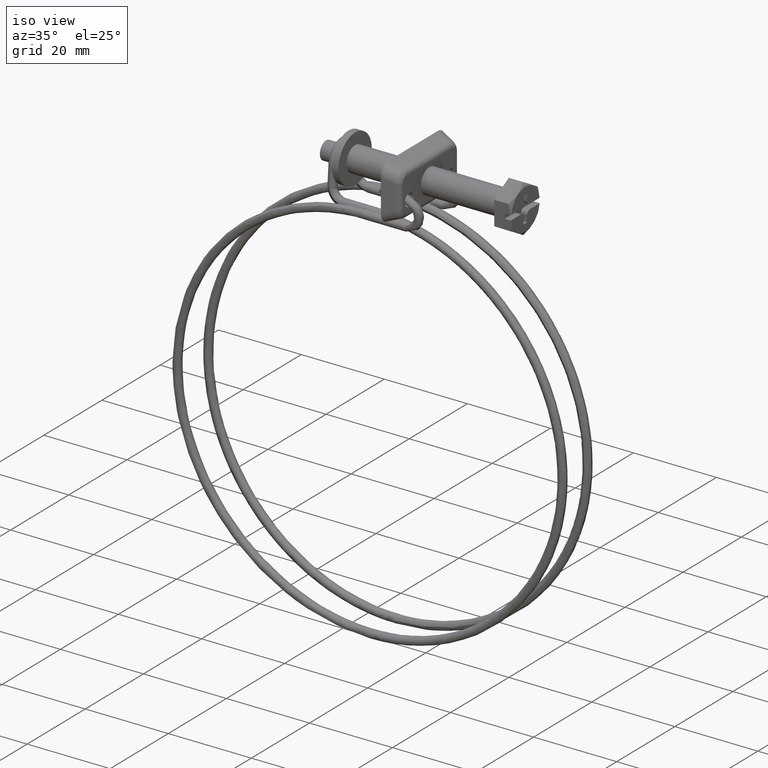
[diagram: clean part render]
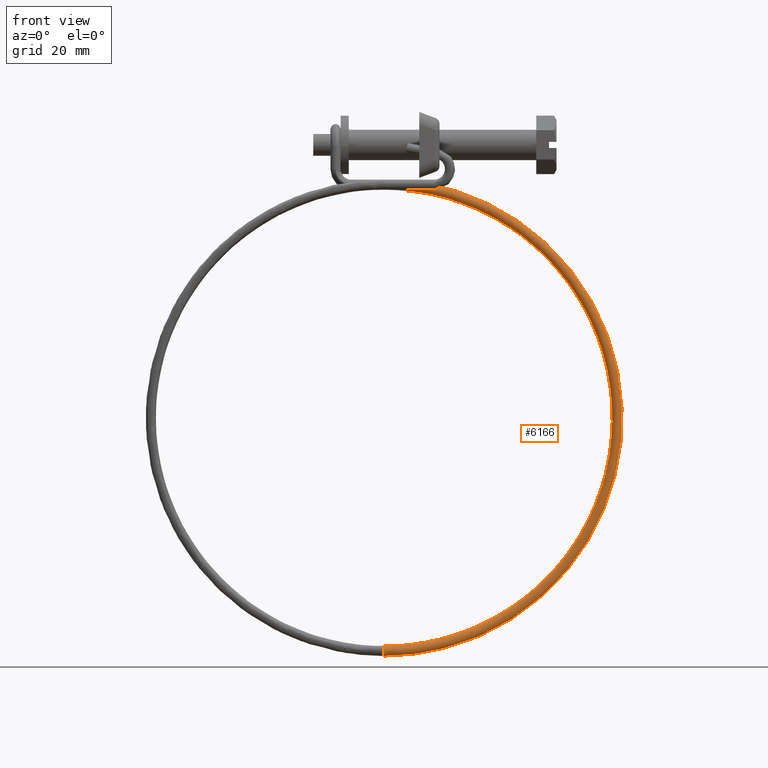
[diagram: tour spotlight — one face highlighted and labeled with its STEP entity id]
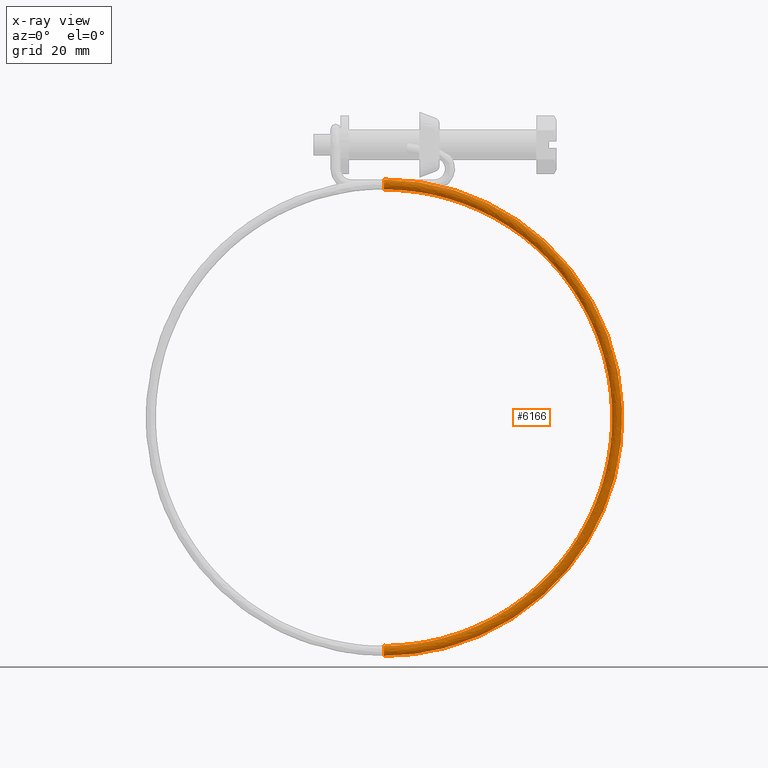
[diagram: x-ray of the same camera — body ghosted, this tour face saturated]
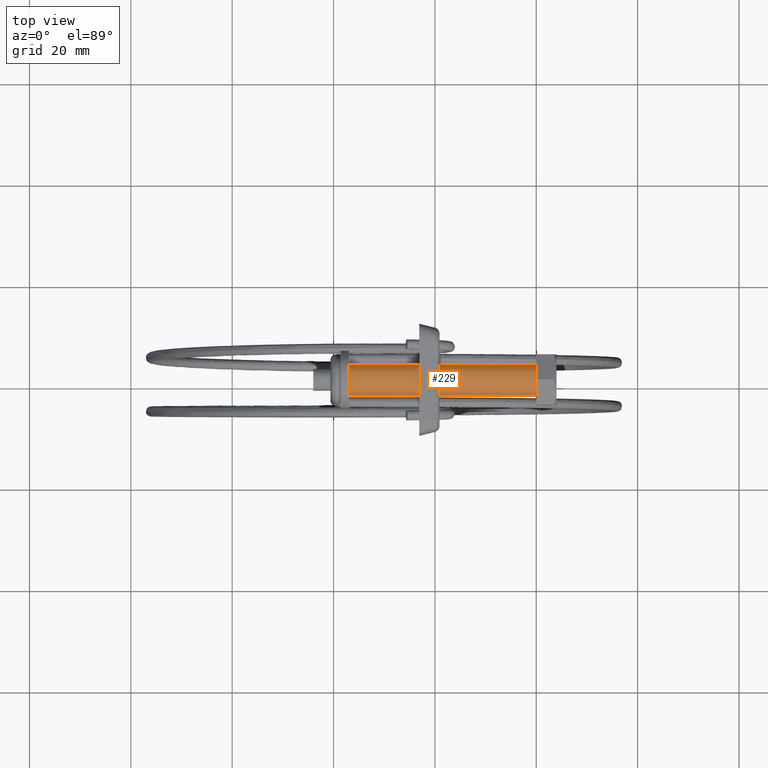
[diagram: tour spotlight — one face highlighted and labeled with its STEP entity id]
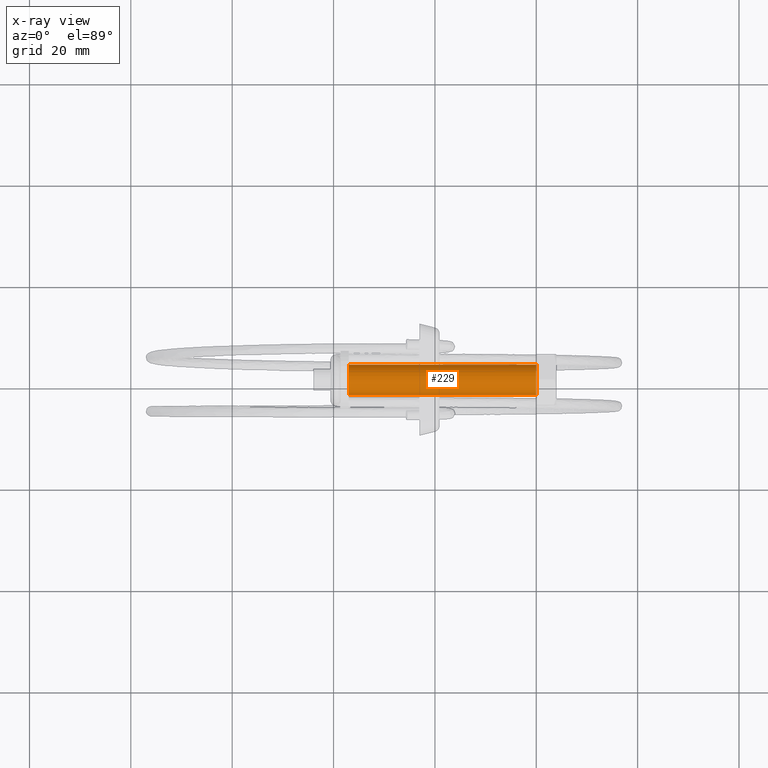
[diagram: x-ray of the same camera — body ghosted, this tour face saturated]
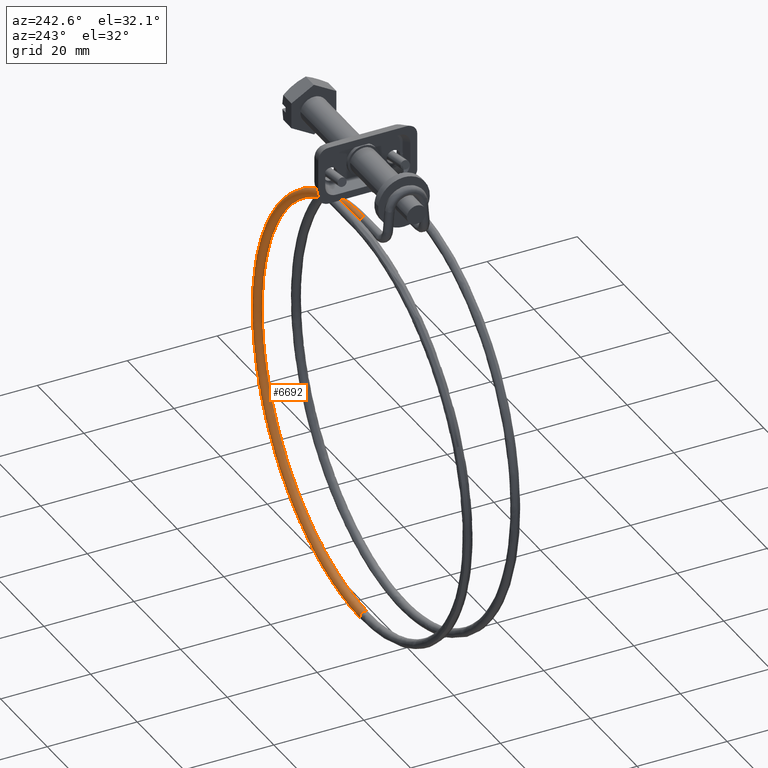
[diagram: tour spotlight — one face highlighted and labeled with its STEP entity id]
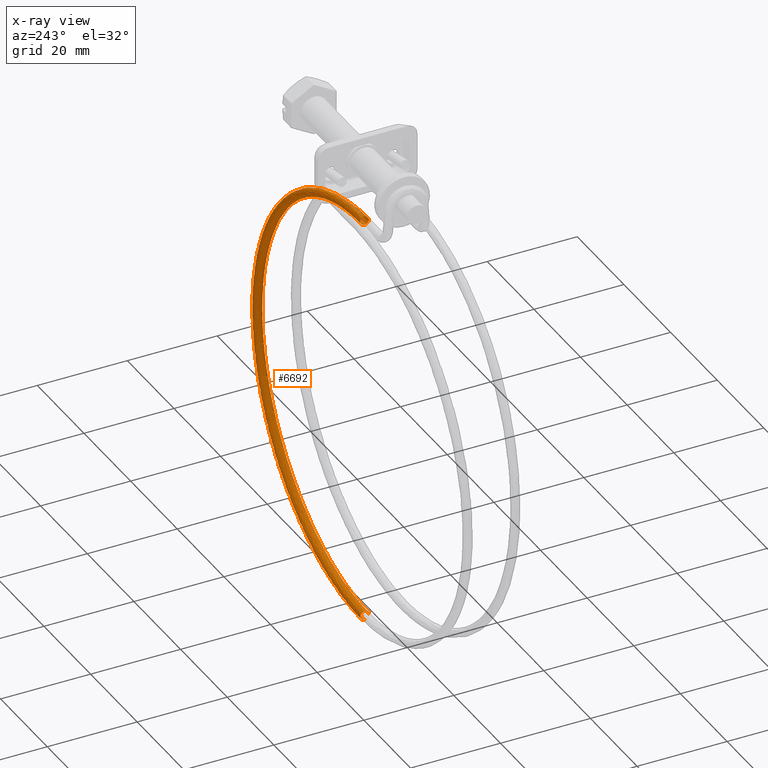
[diagram: x-ray of the same camera — body ghosted, this tour face saturated]
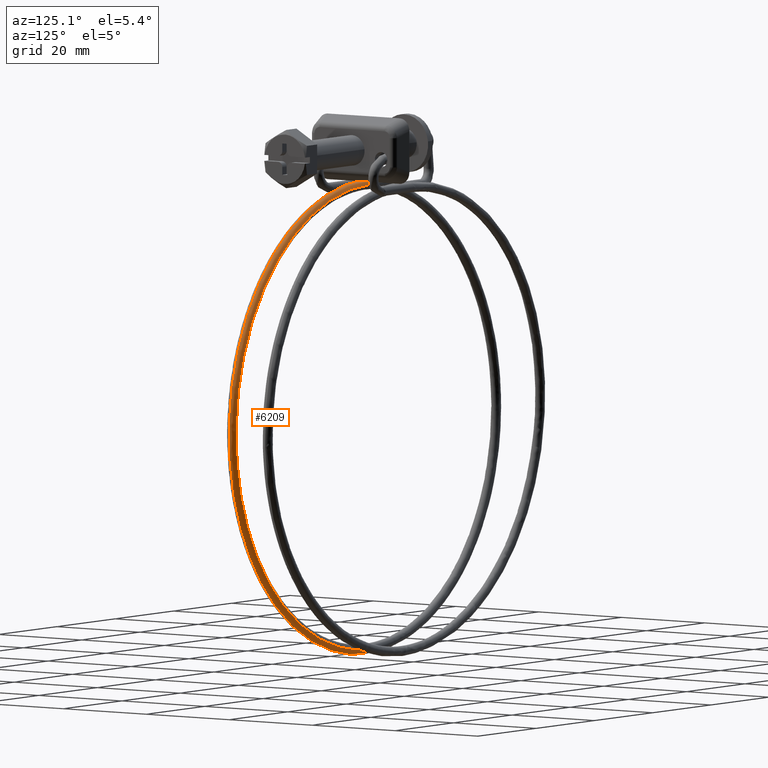
[diagram: tour spotlight — one face highlighted and labeled with its STEP entity id]
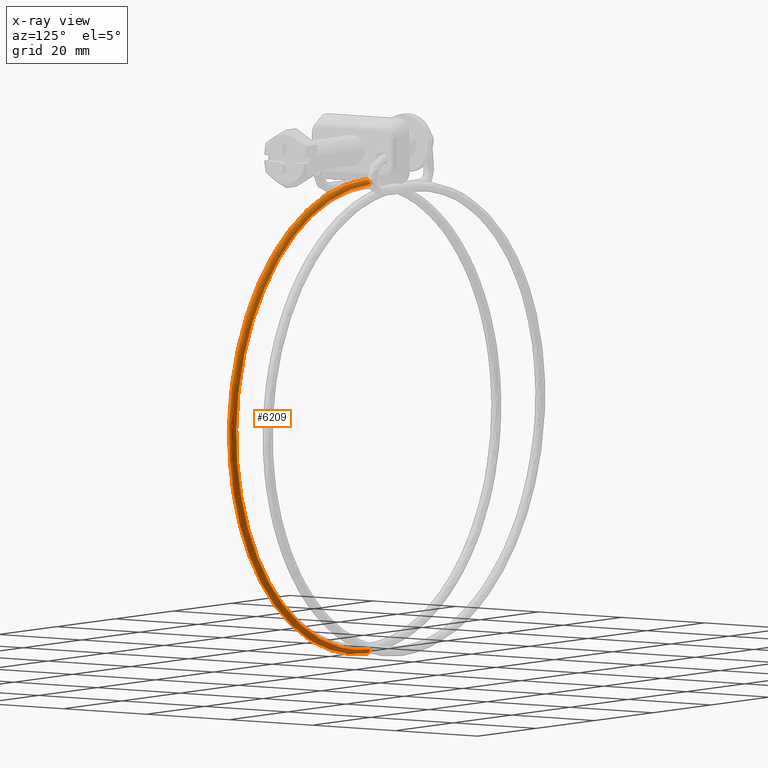
[diagram: x-ray of the same camera — body ghosted, this tour face saturated]
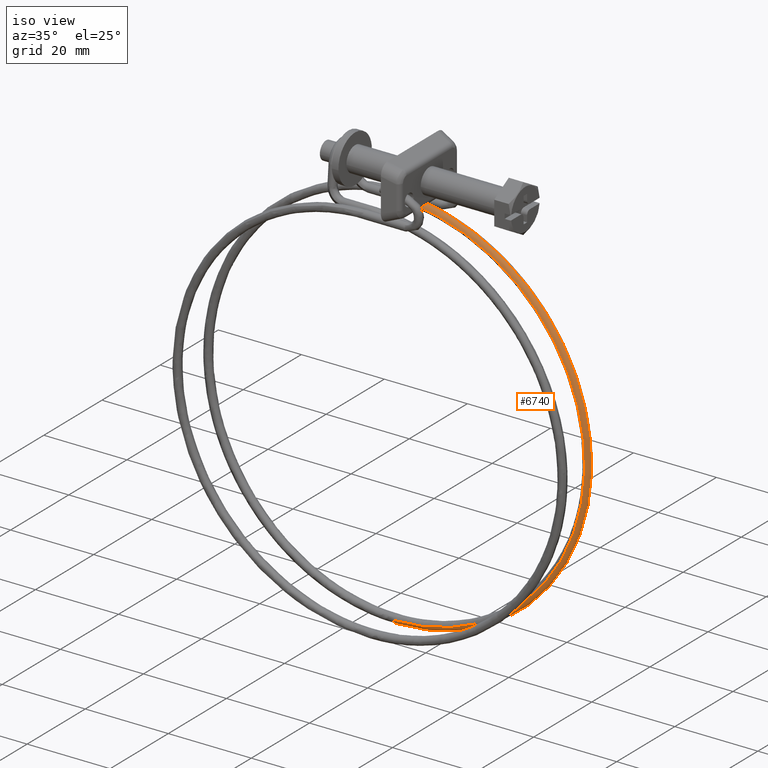
[diagram: tour spotlight — one face highlighted and labeled with its STEP entity id]
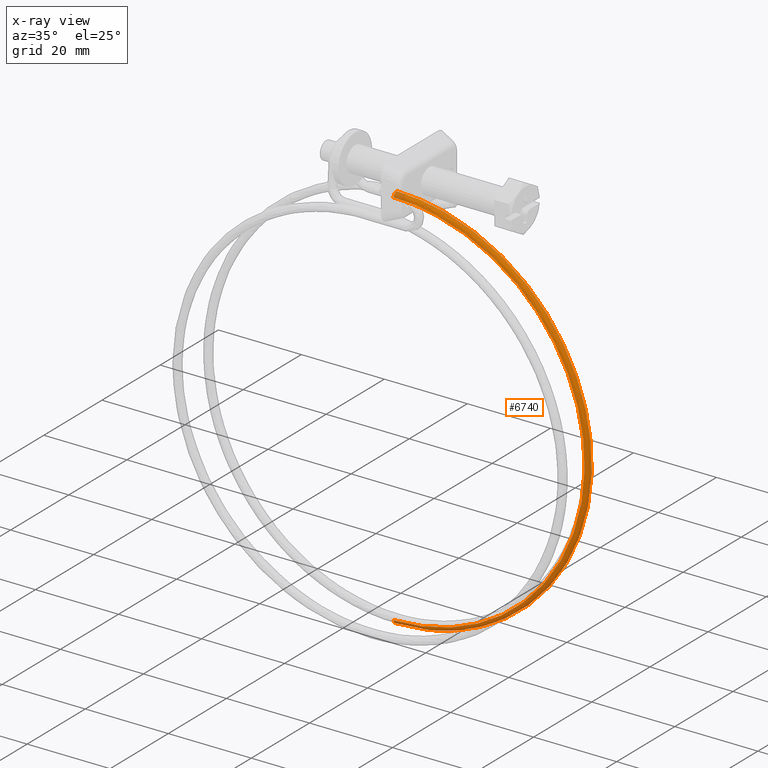
[diagram: x-ray of the same camera — body ghosted, this tour face saturated]
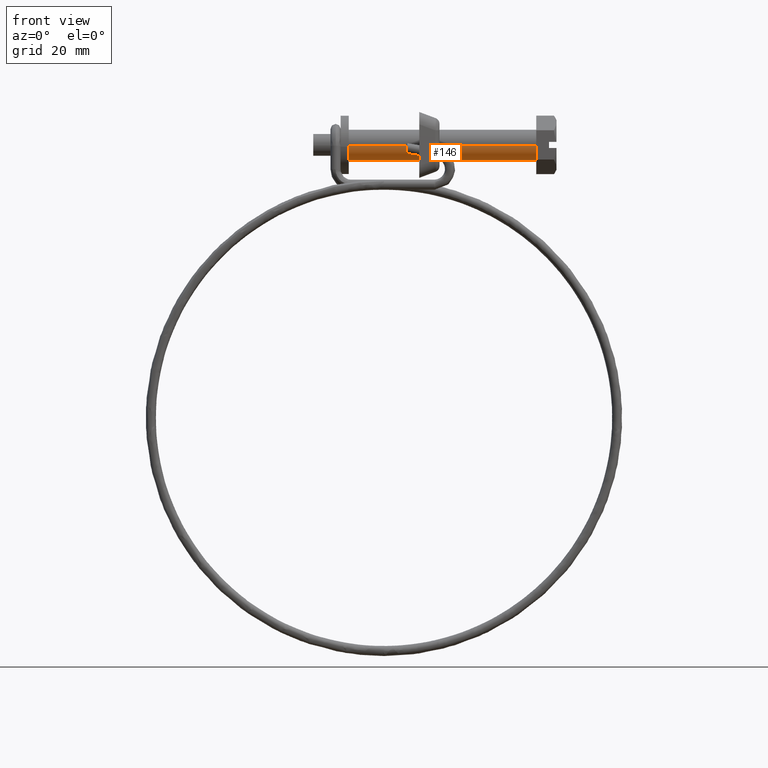
[diagram: tour spotlight — one face highlighted and labeled with its STEP entity id]
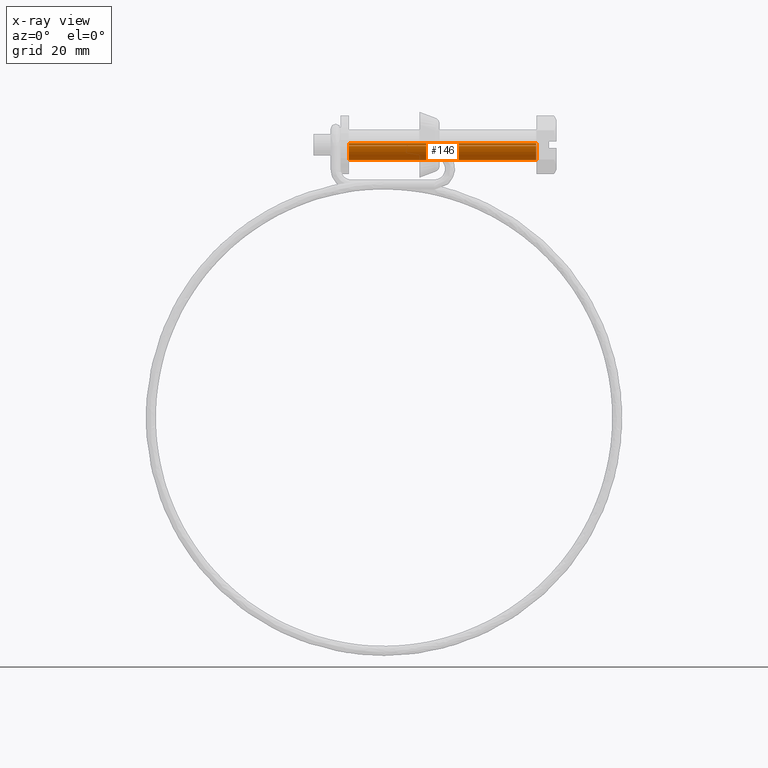
[diagram: x-ray of the same camera — body ghosted, this tour face saturated]
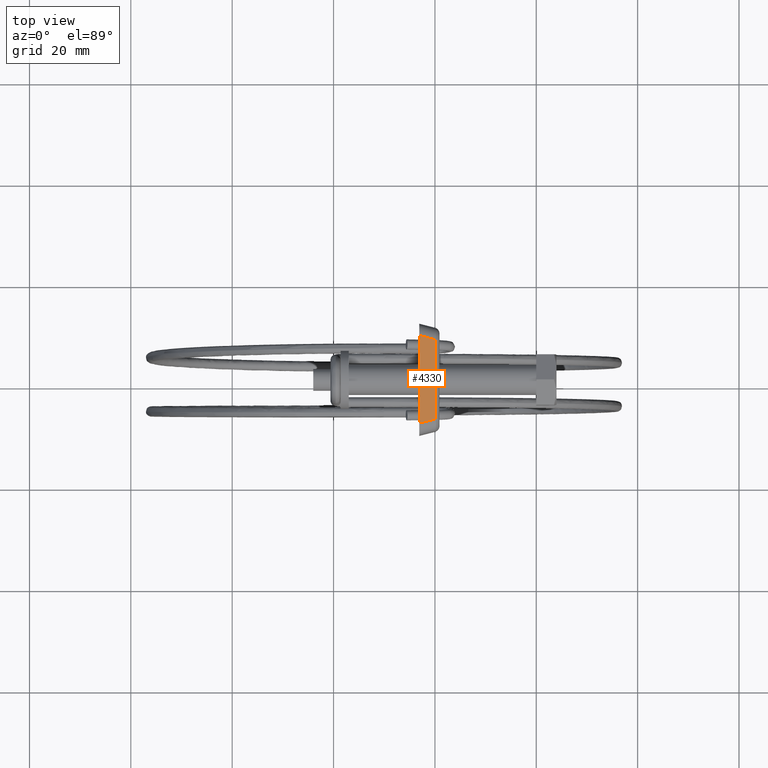
[diagram: tour spotlight — one face highlighted and labeled with its STEP entity id]
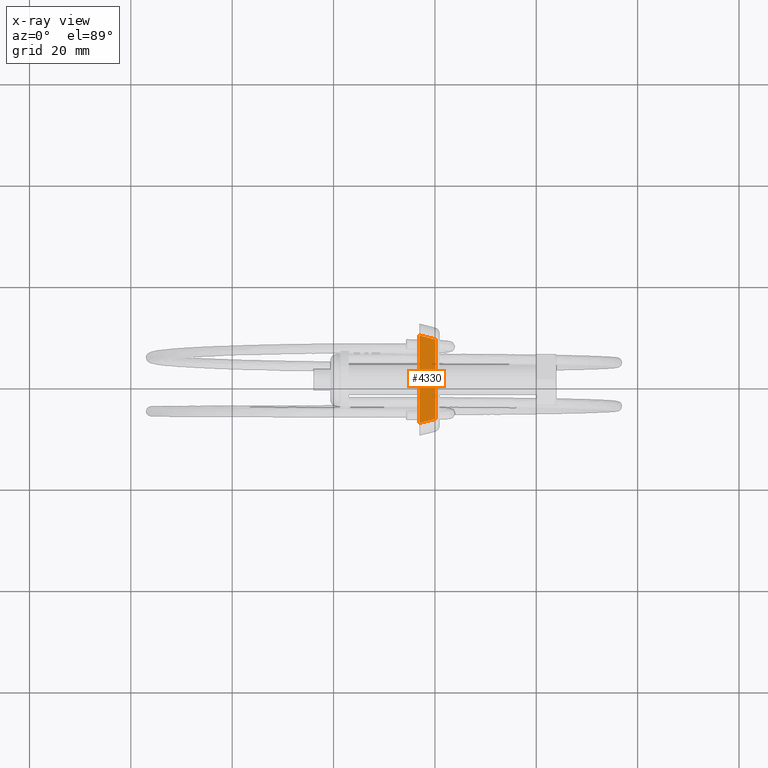
[diagram: x-ray of the same camera — body ghosted, this tour face saturated]
A machine part: a face-by-face anatomy tour. The part has 119 B-rep faces; the first image is the clean iso view, then the 7 largest visible faces are spotlighted one at a time (largest first), each with its STEP entity span.

Face 1 — front view, entity #6166. An x-ray twin of the same camera follows (body ghosted, this face saturated) — the face is partly hidden behind the body. In plain terms, the highlighted face is a freeform B-spline surface patch.
Definition (entity closure, byte-faithful):
#4773=CARTESIAN_POINT('',(-30.049995257470520,-3.594624894025222,-8.558833235699950));
#4774=VERTEX_POINT('',#4773);
#4780=CARTESIAN_POINT('',(-30.049995287959291,-4.300002000000000,-8.850001000000585));
#4781=VERTEX_POINT('',#4780);
#4782=CARTESIAN_POINT('',(-30.049995287959291,-4.300002000000000,-8.850001000000585));
#4783=CARTESIAN_POINT('',(-30.049995287959288,-3.887218690955943,-8.850001000000583));
#4784=CARTESIAN_POINT('',(-30.049995257470524,-3.594624894025222,-8.558833235699950));
#4792=(BOUNDED_CURVE()B_SPLINE_CURVE(2,(#4782,#4783,#4784),.UNSPECIFIED.,.F.,.U.)B_SPLINE_CURVE_WITH_KNOTS((3,3),(0.500000000000000,0.624631405353570),.UNSPECIFIED.)CURVE()GEOMETRIC_REPRESENTATION_ITEM()RATIONAL_B_SPLINE_CURVE((1.0,0.853985226082995,0.853554663971271))REPRESENTATION_ITEM(''));
#4793=EDGE_CURVE('',#4781,#4774,#4792,.T.);
#4795=CARTESIAN_POINT('',(-30.049995147374162,-5.048017177117474,-8.513684280952715));
#4796=VERTEX_POINT('',#4795);
#4797=CARTESIAN_POINT('',(-30.049995147374155,-5.048017177117473,-8.513684280952715));
#4798=CARTESIAN_POINT('',(-30.049995287519781,-4.749616730907934,-8.850000648480142));
#4799=CARTESIAN_POINT('',(-30.049995287959291,-4.300002000000000,-8.850001000000585));
#4807=(BOUNDED_CURVE()B_SPLINE_CURVE(2,(#4797,#4798,#4799),.UNSPECIFIED.,.F.,.U.)B_SPLINE_CURVE_WITH_KNOTS((3,3),(0.365993895175260,0.500000000000000),.UNSPECIFIED.)CURVE()GEOMETRIC_REPRESENTATION_ITEM()RATIONAL_B_SPLINE_CURVE((0.854313600089323,0.843002082468916,1.0))REPRESENTATION_ITEM(''));
#4808=EDGE_CURVE('',#4796,#4781,#4807,.T.);
#4858=CARTESIAN_POINT('',(-30.049994456287958,-4.306285013928004,-6.850040477823139));
#4859=VERTEX_POINT('',#4858);
#4860=CARTESIAN_POINT('',(-30.049994456287962,-4.306285013928004,-6.850040477823139));
#4861=CARTESIAN_POINT('',(-30.049994457913055,-5.300001690584296,-6.856284065724415));
#4862=CARTESIAN_POINT('',(-30.049994871145110,-5.300001341735539,-7.850010371504185));
#4863=CARTESIAN_POINT('',(-30.049995029028523,-5.300001208451018,-8.229683021965165));
#4864=CARTESIAN_POINT('',(-30.049995147374162,-5.048017177117474,-8.513684280952715));
#4872=(BOUNDED_CURVE()B_SPLINE_CURVE(2,(#4860,#4861,#4862,#4863,#4864),.UNSPECIFIED.,.F.,.U.)B_SPLINE_CURVE_WITH_KNOTS((3,2,3),(0.001109279827114,0.250000000000000,0.365993895175260),.UNSPECIFIED.)CURVE()GEOMETRIC_REPRESENTATION_ITEM()RATIONAL_B_SPLINE_CURVE((0.997412328666617,0.708406383343061,1.0,0.864104698717631,0.854313600089322))REPRESENTATION_ITEM(''));
#4873=EDGE_CURVE('',#4859,#4796,#4872,.T.);
#4875=CARTESIAN_POINT('',(-30.049995175945341,-3.302436326159913,-7.780267748420099));
#4876=VERTEX_POINT('',#4875);
#4890=CARTESIAN_POINT('',(-30.049995257470528,-3.594624894025223,-8.558833235699952));
#4891=CARTESIAN_POINT('',(-30.049995226770317,-3.300002000000000,-8.265646263642102));
#4892=CARTESIAN_POINT('',(-30.049995183247251,-3.300002000000000,-7.850001000000590));
#4893=CARTESIAN_POINT('',(-30.049995179591839,-3.300001999999999,-7.815091884120925));
#4894=CARTESIAN_POINT('',(-30.049995175945337,-3.302436326159913,-7.780267748420099));
#4902=(BOUNDED_CURVE()B_SPLINE_CURVE(2,(#4890,#4891,#4892,#4893,#4894),.UNSPECIFIED.,.F.,.U.)B_SPLINE_CURVE_WITH_KNOTS((3,2,3),(0.624631405353570,0.750000000000000,0.762166313466567),.UNSPECIFIED.)CURVE()GEOMETRIC_REPRESENTATION_ITEM()RATIONAL_B_SPLINE_CURVE((0.853554663971271,0.853121555103552,1.0,0.985746277150734,0.972879876383467))REPRESENTATION_ITEM(''));
#4903=EDGE_CURVE('',#4774,#4876,#4902,.T.);
#6028=CARTESIAN_POINT('',(-36.559930187024541,-3.303985050428964,-8.220153403739808));
#6029=CARTESIAN_POINT('',(16.041888469641513,-3.303985050428964,-0.715544354958194));
#6030=CARTESIAN_POINT('',(16.041888469641545,-3.303985050428965,-53.850001000000098));
#6031=CARTESIAN_POINT('',(16.041888469641531,-3.303985050428964,-106.984457645041960));
#6032=CARTESIAN_POINT('',(-36.559930187024520,-3.303985050428965,-99.479848596260396));
#6033=CARTESIAN_POINT('',(-36.558359009824485,-3.303207423280082,-8.231166206354489));
#6034=CARTESIAN_POINT('',(16.030764153068187,-3.303207423280083,-0.728368401364129));
#6035=CARTESIAN_POINT('',(16.030764153068208,-3.303207423280083,-53.850001000000098));
#6036=CARTESIAN_POINT('',(16.030764153068198,-3.303207423280081,-106.971633598636030));
#6037=CARTESIAN_POINT('',(-36.558359009824471,-3.303207423280083,-99.468835793645709));
#6038=CARTESIAN_POINT('',(-36.552768689069232,-3.300440590111869,-8.270350264669704));
#6039=CARTESIAN_POINT('',(15.991183322958186,-3.300440590111870,-0.773996948409670));
#6040=CARTESIAN_POINT('',(15.991183322958195,-3.300440590111870,-53.850001000000098));
#6041=CARTESIAN_POINT('',(15.991183322958205,-3.300440590111871,-106.926005051590560));
#6042=CARTESIAN_POINT('',(-36.552768689069232,-3.300440590111869,-99.429651735330481));
#6043=CARTESIAN_POINT('',(-36.548726838731902,-3.300080955796184,-8.298680678299528));
#6044=CARTESIAN_POINT('',(15.962566039883338,-3.300080955796186,-0.806986783222821));
#6045=CARTESIAN_POINT('',(15.962566039883340,-3.300080955796184,-53.850001000000098));
#6046=CARTESIAN_POINT('',(15.962566039883354,-3.300080955796184,-106.893015216777390));
#6047=CARTESIAN_POINT('',(-36.548726838731895,-3.300080955796185,-99.401321321700664));
#6048=CARTESIAN_POINT('',(-36.407499902573917,-3.287514915912832,-9.288578171550766));
#6049=CARTESIAN_POINT('',(14.962644995679515,-3.287514915912833,-1.959689853887994));
#6050=CARTESIAN_POINT('',(14.962644995679520,-3.287514915912832,-53.850001000000098));
#6051=CARTESIAN_POINT('',(14.962644995679531,-3.287514915912833,-105.740312146112200));
#6052=CARTESIAN_POINT('',(-36.407499902573910,-3.287514915912832,-98.411423828449429));
#6053=CARTESIAN_POINT('',(-36.405725099130514,-4.287435960116647,-9.301018245147301));
#6054=CARTESIAN_POINT('',(14.950078955796171,-4.287435960116648,-1.974175910405761));
#6055=CARTESIAN_POINT('',(14.950078955796171,-4.287435960116647,-53.850001000000098));
#6056=CARTESIAN_POINT('',(14.950078955796178,-4.287435960116647,-105.725826089594430));
#6057=CARTESIAN_POINT('',(-36.405725099130514,-4.287435960116647,-98.398983754852893));
#6058=CARTESIAN_POINT('',(-36.403950295687139,-5.287357004320464,-9.313458318743848));
#6059=CARTESIAN_POINT('',(14.937512915912817,-5.287357004320463,-1.988661966923534));
#6060=CARTESIAN_POINT('',(14.937512915912814,-5.287357004320464,-53.850001000000098));
#6061=CARTESIAN_POINT('',(14.937512915912825,-5.287357004320463,-105.711340033076670));
#6062=CARTESIAN_POINT('',(-36.403950295687132,-5.287357004320462,-98.386543681256313));
#6063=CARTESIAN_POINT('',(-36.545177231845123,-5.299923044203815,-8.323560825492608));
#6064=CARTESIAN_POINT('',(15.937433960116623,-5.299923044203815,-0.835958896258346));
#6065=CARTESIAN_POINT('',(15.937433960116630,-5.299923044203815,-53.850001000000098));
#6066=CARTESIAN_POINT('',(15.937433960116639,-5.299923044203815,-106.864043103741840));
#6067=CARTESIAN_POINT('',(-36.545177231845123,-5.299923044203815,-99.376441174507590));
#6068=CARTESIAN_POINT('',(-36.686404168003129,-5.312489084087169,-7.333663332241382));
#6069=CARTESIAN_POINT('',(16.937355004320452,-5.312489084087169,0.316744174406827));
#6070=CARTESIAN_POINT('',(16.937355004320455,-5.312489084087169,-53.850001000000098));
#6071=CARTESIAN_POINT('',(16.937355004320452,-5.312489084087169,-108.016746174407030));
#6072=CARTESIAN_POINT('',(-36.686404168003115,-5.312489084087168,-100.366338667758810));
#6073=CARTESIAN_POINT('',(-36.688203509189513,-4.298743519942113,-7.321051267019596));
#6074=CARTESIAN_POINT('',(16.950094777389996,-4.298743519942113,0.331430509514956));
#6075=CARTESIAN_POINT('',(16.950094777389999,-4.298743519942114,-53.850001000000105));
#6076=CARTESIAN_POINT('',(16.950094777390014,-4.298743519942113,-108.031432509515160));
#6077=CARTESIAN_POINT('',(-36.688203509189499,-4.298743519942114,-100.378950732980670));
#6078=CARTESIAN_POINT('',(-36.688227767489487,-4.285076437693536,-7.320881234085488));
#6079=CARTESIAN_POINT('',(16.950266532051643,-4.285076437693537,0.331628507273913));
#6080=CARTESIAN_POINT('',(16.950266532051632,-4.285076437693535,-53.850001000000077));
#6081=CARTESIAN_POINT('',(16.950266532051643,-4.285076437693537,-108.031630507274120));
#6082=CARTESIAN_POINT('',(-36.688227767489465,-4.285076437693538,-100.379120765914720));
#6090=(BOUNDED_SURFACE()B_SPLINE_SURFACE(2,2,((#6028,#6033,#6038,#6043,#6048,#6053,#6058,#6063,#6068,#6073,#6078),(#6029,#6034,#6039,#6044,#6049,#6054,#6059,#6064,#6069,#6074,#6079),(#6030,#6035,#6040,#6045,#6050,#6055,#6060,#6065,#6070,#6075,#6080),(#6031,#6036,#6041,#6046,#6051,#6056,#6061,#6066,#6071,#6076,#6081),(#6032,#6037,#6042,#6047,#6052,#6057,#6062,#6067,#6072,#6077,#6082)),.UNSPECIFIED.,.F.,.F.,.U.)B_SPLINE_SURFACE_WITH_KNOTS((3,2,3),(3,1,2,2,2,1,3),(0.0,85.795304018358848,171.590608036717700),(0.0,0.025221104691210,0.091495211466933,1.748349460959333,3.405203710451733,5.062057959944133,5.094639972131380),.UNSPECIFIED.)GEOMETRIC_REPRESENTATION_ITEM()RATIONAL_B_SPLINE_SURFACE(((0.965015227708822,0.969098910111592,0.983913383528984,0.995577285838481,0.703979450011688,0.995577285838481,0.703979450011688,0.995577285838481,0.703979450011688,1.001311552593444,1.007045819348407),(0.633750136723844,0.636431995213514,0.646161038117899,0.653821020542143,0.462321277307658,0.653821020542143,0.462321277307658,0.653821020542143,0.462321277307658,0.657586859915059,0.661352699287974),(0.969302174161276,0.973403997757352,0.988284282420452,1.0,0.707106781186548,1.0,0.707106781186548,1.0,0.707106781186548,1.005759740440576,1.011519480881153),(0.633750136723844,0.636431995213514,0.646161038117899,0.653821020542143,0.462321277307658,0.653821020542143,0.462321277307658,0.653821020542143,0.462321277307658,0.657586859915059,0.661352699287974),(0.965015227708822,0.969098910111592,0.983913383528984,0.995577285838481,0.703979450011688,0.995577285838481,0.703979450011688,0.995577285838481,0.703979450011688,1.001311552593444,1.007045819348407)))REPRESENTATION_ITEM('')SURFACE());
#6091=CARTESIAN_POINT('',(-30.049999999998960,-4.300002000000002,-98.850001000000105));
#6092=VERTEX_POINT('',#6091);
#6093=CARTESIAN_POINT('',(-30.049999999996380,-3.302485887035306,-99.919730657954716));
#6094=VERTEX_POINT('',#6093);
#6095=CARTESIAN_POINT('',(-30.049999999998960,-4.300002000000002,-98.850001000000105));
#6096=CARTESIAN_POINT('',(-30.049999999998640,-4.038196562363255,-98.850001438668670));
#6097=CARTESIAN_POINT('',(-30.049999999998189,-3.778000607902754,-98.957775164691753));
#6098=CARTESIAN_POINT('',(-30.049999999997279,-3.407742631726005,-99.328016695221947));
#6099=CARTESIAN_POINT('',(-30.049999999996810,-3.299960596688532,-99.588204614319778));
#6100=CARTESIAN_POINT('',(-30.049999999996441,-3.299953531839380,-99.873276473137182));
#6101=CARTESIAN_POINT('',(-30.049999999996409,-3.300804581624376,-99.896535733557755));
#6102=CARTESIAN_POINT('',(-30.049999999996380,-3.302485887035306,-99.919730657954716));
#6103=B_SPLINE_CURVE_WITH_KNOTS('',3,(#6095,#6096,#6097,#6098,#6099,#6100,#6101,#6102),.UNSPECIFIED.,.F.,.U.,(4,2,2,4),(0.500000000000000,0.625000000000000,0.750000000000000,0.761111541812466),.UNSPECIFIED.);
#6104=EDGE_CURVE('',#6092,#6094,#6103,.T.);
#6105=ORIENTED_EDGE('',*,*,#6104,.F.);
#6106=CARTESIAN_POINT('',(-30.049999999999081,-5.028950799199253,-100.534536873659600));
#6107=VERTEX_POINT('',#6106);
#6108=CARTESIAN_POINT('',(-30.049999999999081,-5.028950799199253,-100.534536873659600));
#6109=CARTESIAN_POINT('',(-30.049999999998921,-5.200678629125559,-100.351169305945400));
#6110=CARTESIAN_POINT('',(-30.049999999998931,-5.300001999999999,-100.101328014056190));
#6111=CARTESIAN_POINT('',(-30.049999999998938,-5.300002000000001,-99.588201612200976));
#6112=CARTESIAN_POINT('',(-30.049999999998938,-5.192228903609815,-99.328014341236823));
#6113=CARTESIAN_POINT('',(-30.049999999998960,-4.821988658763284,-98.957774096390295));
#6114=CARTESIAN_POINT('',(-30.049999999998960,-4.561801387799152,-98.850001000000120));
#6115=CARTESIAN_POINT('',(-30.049999999998960,-4.300002000000002,-98.850001000000105));
#6116=B_SPLINE_CURVE_WITH_KNOTS('',3,(#6108,#6109,#6110,#6111,#6112,#6113,#6114,#6115),.UNSPECIFIED.,.F.,.U.,(4,2,2,4),(0.130000190141357,0.250000000000000,0.375000000000000,0.500000000000000),.UNSPECIFIED.);
#6117=EDGE_CURVE('',#6107,#6092,#6116,.T.);
#6118=ORIENTED_EDGE('',*,*,#6117,.F.);
#6119=CARTESIAN_POINT('',(-30.049999999351751,-4.306285019941678,-100.849961522102010));
#6120=VERTEX_POINT('',#6119);
#6121=CARTESIAN_POINT('',(-30.049999999351751,-4.306285019941678,-100.849961522102010));
#6122=CARTESIAN_POINT('',(-30.049999999547641,-4.565959695528898,-100.848258487153400));
#6123=CARTESIAN_POINT('',(-30.049999999776649,-4.823469649266651,-100.740740414047390));
#6124=CARTESIAN_POINT('',(-30.049999999983079,-5.014513864648077,-100.549702234600700));
#6125=CARTESIAN_POINT('',(-30.049999999991030,-5.021795188001790,-100.542177262410600));
#6126=CARTESIAN_POINT('',(-30.049999999999081,-5.028950799199253,-100.534536873659600));
#6127=B_SPLINE_CURVE_WITH_KNOTS('',3,(#6121,#6122,#6123,#6124,#6125,#6126),.UNSPECIFIED.,.F.,.U.,(4,2,4),(0.001000048621619,0.125000000000000,0.130000190141357),.UNSPECIFIED.);
#6128=EDGE_CURVE('',#6120,#6107,#6127,.T.);
#6129=ORIENTED_EDGE('',*,*,#6128,.F.);
#6130=CARTESIAN_POINT('',(-30.049994456287958,-4.306285013928004,-6.850040477823139));
#6131=CARTESIAN_POINT('',(16.949921044208473,-4.306285013928004,-6.850046021532193));
#6132=CARTESIAN_POINT('',(16.949921044206128,-4.306285016934841,-53.850000999960059));
#6133=CARTESIAN_POINT('',(16.949921044203816,-4.306285019941678,-100.849961521451390));
#6134=CARTESIAN_POINT('',(-30.049999999351748,-4.306285019941678,-100.849961522101980));
#6142=(BOUNDED_CURVE()B_SPLINE_CURVE(2,(#6130,#6131,#6132,#6133,#6134),.UNSPECIFIED.,.F.,.U.)B_SPLINE_CURVE_WITH_KNOTS((3,2,3),(-3.806731574337247,-2.0,-0.193268279645737),.UNSPECIFIED.)CURVE()GEOMETRIC_REPRESENTATION_ITEM()RATIONAL_B_SPLINE_CURVE((0.939171323146932,0.685263246469385,1.0,0.685263221032889,0.939171364187786))REPRESENTATION_ITEM(''));
#6143=EDGE_CURVE('',#4859,#6120,#6142,.T.);
#6144=ORIENTED_EDGE('',*,*,#6143,.F.);
#6145=ORIENTED_EDGE('',*,*,#4873,.T.);
#6146=ORIENTED_EDGE('',*,*,#4808,.T.);
#6147=ORIENTED_EDGE('',*,*,#4793,.T.);
#6148=ORIENTED_EDGE('',*,*,#4903,.T.);
#6149=CARTESIAN_POINT('',(-30.049995175945337,-3.302436326159912,-7.780267748420099));
#6150=CARTESIAN_POINT('',(16.019733251575420,-3.302436326161209,-7.780272572474166));
#6151=CARTESIAN_POINT('',(16.019733251575428,-3.302461106596312,-53.849999203187366));
#6152=CARTESIAN_POINT('',(16.019733251575431,-3.302485887034011,-99.919730657951206));
#6153=CARTESIAN_POINT('',(-30.049999999996384,-3.302485887035306,-99.919730657954716));
#6161=(BOUNDED_CURVE()B_SPLINE_CURVE(2,(#6149,#6150,#6151,#6152,#6153),.UNSPECIFIED.,.F.,.U.)B_SPLINE_CURVE_WITH_KNOTS((3,2,3),(-3.806731590728776,-2.0,-0.193268279628758),.UNSPECIFIED.)CURVE()GEOMETRIC_REPRESENTATION_ITEM()RATIONAL_B_SPLINE_CURVE((0.918045420820077,0.669848795704314,0.977505800795127,0.669848773628311,0.918045456438898))REPRESENTATION_ITEM(''));
#6162=EDGE_CURVE('',#4876,#6094,#6161,.T.);
#6163=ORIENTED_EDGE('',*,*,#6162,.T.);
#6164=EDGE_LOOP('',(#6105,#6118,#6129,#6144,#6145,#6146,#6147,#6148,#6163));
#6165=FACE_OUTER_BOUND('',#6164,.T.);
#6166=ADVANCED_FACE('',(#6165),#6090,.T.);

Face 2 — top view, entity #229. An x-ray twin of the same camera follows (body ghosted, this face saturated) — the face is partly hidden behind the body. In plain terms, the highlighted face is a freeform B-spline surface patch.
Definition (entity closure, byte-faithful):
#66=CARTESIAN_POINT('',(1.362926E-015,2.979028579056412,0.354102704262229));
#67=VERTEX_POINT('',#66);
#85=CARTESIAN_POINT('',(1.387779E-015,-2.994404395251776,-0.183145618832482));
#86=VERTEX_POINT('',#85);
#100=CARTESIAN_POINT('',(-37.0,-2.994404395251777,-0.183145618832482));
#101=VERTEX_POINT('',#100);
#102=CARTESIAN_POINT('',(1.387779E-015,-2.994404395251776,-0.183145618832482));
#103=CARTESIAN_POINT('',(-37.0,-2.994404395251777,-0.183145618832482));
#104=QUASI_UNIFORM_CURVE('',1,(#102,#103),.UNSPECIFIED.,.F.,.U.);
#105=EDGE_CURVE('',#86,#101,#104,.T.);
#122=CARTESIAN_POINT('',(-37.0,2.979028579056412,0.354102704262229));
#123=VERTEX_POINT('',#122);
#139=CARTESIAN_POINT('',(1.362926E-015,2.979028579056412,0.354102704262229));
#140=CARTESIAN_POINT('',(-37.0,2.979028579056412,0.354102704262229));
#141=QUASI_UNIFORM_CURVE('',1,(#139,#140),.UNSPECIFIED.,.F.,.U.);
#142=EDGE_CURVE('',#67,#123,#141,.T.);
#147=CARTESIAN_POINT('',(0.925000000000001,-2.994404395265715,-0.183145618604578));
#148=CARTESIAN_POINT('',(0.925000000000001,-3.177550013870294,2.811258776661137));
#149=CARTESIAN_POINT('',(0.925000000000001,-0.183145618604578,2.994404395265715));
#150=CARTESIAN_POINT('',(0.925000000000001,2.644630472518604,3.167358590197703));
#151=CARTESIAN_POINT('',(0.925000000000001,2.979028579091114,0.354102703970289));
#152=CARTESIAN_POINT('',(-37.948125000000012,-2.994404395265715,-0.183145618604578));
#153=CARTESIAN_POINT('',(-37.948125000000005,-3.177550013870294,2.811258776661137));
#154=CARTESIAN_POINT('',(-37.948125000000012,-0.183145618604578,2.994404395265715));
#155=CARTESIAN_POINT('',(-37.948125000000005,2.644630472518604,3.167358590197703));
#156=CARTESIAN_POINT('',(-37.948125000000012,2.979028579091114,0.354102703970289));
#164=(BOUNDED_SURFACE()B_SPLINE_SURFACE(2,1,((#147,#152),(#148,#153),(#149,#154),(#150,#155),(#151,#156)),.UNSPECIFIED.,.F.,.F.,.U.)B_SPLINE_SURFACE_WITH_KNOTS((3,2,3),(2,2),(0.0,4.970562748477330,9.742302987015567),(0.0,38.873125000000023),.UNSPECIFIED.)GEOMETRIC_REPRESENTATION_ITEM()RATIONAL_B_SPLINE_SURFACE(((1.0,1.0),(0.707106781186548,0.707106781186548),(1.0,1.0),(0.718822509939086,0.718822509939086),(0.977505800795127,0.977505800795127)))REPRESENTATION_ITEM('')SURFACE());
#165=CARTESIAN_POINT('',(0.0,0.0,3.000000000000115));
#166=VERTEX_POINT('',#165);
#167=CARTESIAN_POINT('',(0.0,0.0,3.000000000000115));
#168=CARTESIAN_POINT('',(0.0,2.664523577328301,3.000000000000114));
#169=CARTESIAN_POINT('',(1.362926E-015,2.979028579056412,0.354102704262229));
#177=(BOUNDED_CURVE()B_SPLINE_CURVE(2,(#167,#168,#169),.UNSPECIFIED.,.F.,.U.)B_SPLINE_CURVE_WITH_KNOTS((3,3),(0.500000000000000,0.729562473482521),.UNSPECIFIED.)CURVE()GEOMETRIC_REPRESENTATION_ITEM()RATIONAL_B_SPLINE_CURVE((1.0,0.731050832891707,0.956026754122962))REPRESENTATION_ITEM(''));
#178=EDGE_CURVE('',#166,#67,#177,.T.);
#179=ORIENTED_EDGE('',*,*,#178,.T.);
#180=ORIENTED_EDGE('',*,*,#142,.T.);
#181=CARTESIAN_POINT('',(-37.0,0.0,3.000000000000115));
#182=VERTEX_POINT('',#181);
#183=CARTESIAN_POINT('',(-37.0,0.0,3.000000000000115));
#184=CARTESIAN_POINT('',(-37.0,2.664523577328291,3.000000000000114));
#185=CARTESIAN_POINT('',(-37.0,2.979028579056412,0.354102704262229));
#193=(BOUNDED_CURVE()B_SPLINE_CURVE(2,(#183,#184,#185),.UNSPECIFIED.,.F.,.U.)B_SPLINE_CURVE_WITH_KNOTS((3,3),(0.0,0.229562473482520),.UNSPECIFIED.)CURVE()GEOMETRIC_REPRESENTATION_ITEM()RATIONAL_B_SPLINE_CURVE((1.0,0.731050832891707,0.956026754122961))REPRESENTATION_ITEM(''));
#194=EDGE_CURVE('',#182,#123,#193,.T.);
#195=ORIENTED_EDGE('',*,*,#194,.F.);
#196=CARTESIAN_POINT('',(-36.999999999999993,-2.994404395251777,-0.183145618832482));
#197=CARTESIAN_POINT('',(-37.000000000000007,-3.000000000000115,-0.091658290124313));
#198=CARTESIAN_POINT('',(-37.0,-3.000000000000115,0.0));
#199=CARTESIAN_POINT('',(-37.000000000000007,-3.000000000000114,3.000000000000114));
#200=CARTESIAN_POINT('',(-37.0,0.0,3.000000000000115));
#208=(BOUNDED_CURVE()B_SPLINE_CURVE(2,(#196,#197,#198,#199,#200),.UNSPECIFIED.,.F.,.U.)B_SPLINE_CURVE_WITH_KNOTS((3,2,3),(0.739332962215703,0.750000000000000,1.0),.UNSPECIFIED.)CURVE()GEOMETRIC_REPRESENTATION_ITEM()RATIONAL_B_SPLINE_CURVE((0.976072041616911,0.987502787872610,1.0,0.707106781186547,1.0))REPRESENTATION_ITEM(''));
#209=EDGE_CURVE('',#101,#182,#208,.T.);
#210=ORIENTED_EDGE('',*,*,#209,.F.);
#211=ORIENTED_EDGE('',*,*,#105,.F.);
#212=CARTESIAN_POINT('',(1.387779E-015,-2.994404395251777,-0.183145618832482));
#213=CARTESIAN_POINT('',(0.0,-3.000000000000115,-0.091658290124313));
#214=CARTESIAN_POINT('',(0.0,-3.000000000000115,0.0));
#215=CARTESIAN_POINT('',(0.0,-3.000000000000114,3.000000000000114));
#216=CARTESIAN_POINT('',(0.0,0.0,3.000000000000115));
#224=(BOUNDED_CURVE()B_SPLINE_CURVE(2,(#212,#213,#214,#215,#216),.UNSPECIFIED.,.F.,.U.)B_SPLINE_CURVE_WITH_KNOTS((3,2,3),(0.239332962215703,0.250000000000000,0.500000000000000),.UNSPECIFIED.)CURVE()GEOMETRIC_REPRESENTATION_ITEM()RATIONAL_B_SPLINE_CURVE((0.976072041616911,0.987502787872610,1.0,0.707106781186547,1.0))REPRESENTATION_ITEM(''));
#225=EDGE_CURVE('',#86,#166,#224,.T.);
#226=ORIENTED_EDGE('',*,*,#225,.T.);
#227=EDGE_LOOP('',(#179,#180,#195,#210,#211,#226));
#228=FACE_OUTER_BOUND('',#227,.T.);
#229=ADVANCED_FACE('',(#228),#164,.T.);

Face 3 — auxiliary view, entity #6692. An x-ray twin of the same camera follows (body ghosted, this face saturated) — the face is partly hidden behind the body. In plain terms, the highlighted face is a freeform B-spline surface patch.
Definition (entity closure, byte-faithful):
#5472=CARTESIAN_POINT('',(-30.049995237803412,5.153540388334406,-8.371030960405211));
#5473=VERTEX_POINT('',#5472);
#5474=CARTESIAN_POINT('',(-30.049995287957341,4.300002000000000,-8.850001000000335));
#5475=VERTEX_POINT('',#5474);
#5476=CARTESIAN_POINT('',(-30.049995237803412,5.153540388334404,-8.371030960405211));
#5477=CARTESIAN_POINT('',(-30.049995287957337,4.861160164666528,-8.850001000000335));
#5478=CARTESIAN_POINT('',(-30.049995287957341,4.300002000000000,-8.850001000000335));
#5486=(BOUNDED_CURVE()B_SPLINE_CURVE(2,(#5476,#5477,#5478),.UNSPECIFIED.,.F.,.U.)B_SPLINE_CURVE_WITH_KNOTS((3,3),(0.339018953579028,0.500000000000000),.UNSPECIFIED.)CURVE()GEOMETRIC_REPRESENTATION_ITEM()RATIONAL_B_SPLINE_CURVE((0.865687471163426,0.811398972583214,1.0))REPRESENTATION_ITEM(''));
#5487=EDGE_CURVE('',#5473,#5475,#5486,.T.);
#5489=CARTESIAN_POINT('',(-30.049995180613891,3.300317810718511,-7.824870904527748));
#5490=VERTEX_POINT('',#5489);
#5491=CARTESIAN_POINT('',(-30.049995287957341,4.300002000000000,-8.850001000000335));
#5492=CARTESIAN_POINT('',(-30.049995287957344,3.300001999999999,-8.850001000000335));
#5493=CARTESIAN_POINT('',(-30.049995183245301,3.300002000000000,-7.850001000000341));
#5494=CARTESIAN_POINT('',(-30.049995181929379,3.300001999999999,-7.837433967847678));
#5495=CARTESIAN_POINT('',(-30.049995180613891,3.300317810718511,-7.824870904527748));
#5503=(BOUNDED_CURVE()B_SPLINE_CURVE(2,(#5491,#5492,#5493,#5494,#5495),.UNSPECIFIED.,.F.,.U.)B_SPLINE_CURVE_WITH_KNOTS((3,2,3),(0.500000000000000,0.750000000000000,0.754420108240438),.UNSPECIFIED.)CURVE()GEOMETRIC_REPRESENTATION_ITEM()RATIONAL_B_SPLINE_CURVE((1.0,0.707106781186548,1.0,0.994821521079816,0.989826157658417))REPRESENTATION_ITEM(''));
#5504=EDGE_CURVE('',#5475,#5490,#5503,.T.);
#5506=CARTESIAN_POINT('',(-30.049995078565889,4.325132097891226,-6.850316810778567));
#5507=VERTEX_POINT('',#5506);
#5521=CARTESIAN_POINT('',(-30.049995109125081,5.006367914851163,-7.142154127904068));
#5522=VERTEX_POINT('',#5521);
#5523=CARTESIAN_POINT('',(-30.049995078565885,4.325132097891226,-6.850316810778567));
#5524=CARTESIAN_POINT('',(-30.049995079615908,4.723965648140796,-6.860342703223545));
#5525=CARTESIAN_POINT('',(-30.049995109125078,5.006367914851163,-7.142154127904068));
#5533=(BOUNDED_CURVE()B_SPLINE_CURVE(2,(#5523,#5524,#5525),.UNSPECIFIED.,.F.,.U.)B_SPLINE_CURVE_WITH_KNOTS((3,3),(0.004420108658655,0.124841990447016),.UNSPECIFIED.)CURVE()GEOMETRIC_REPRESENTATION_ITEM()RATIONAL_B_SPLINE_CURVE((0.989826156713127,0.853731964305847,0.853553624598730))REPRESENTATION_ITEM(''));
#5534=EDGE_CURVE('',#5507,#5522,#5533,.T.);
#5627=CARTESIAN_POINT('',(-30.049995109125078,5.006367914851163,-7.142154127904068));
#5628=CARTESIAN_POINT('',(-30.049995139807908,5.300002000000000,-7.435173871812224));
#5629=CARTESIAN_POINT('',(-30.049995183245301,5.300002000000000,-7.850001000000341));
#5630=CARTESIAN_POINT('',(-30.049995212679878,5.300002000000000,-8.131101176309002));
#5631=CARTESIAN_POINT('',(-30.049995237803405,5.153540388334406,-8.371030960405211));
#5639=(BOUNDED_CURVE()B_SPLINE_CURVE(2,(#5627,#5628,#5629,#5630,#5631),.UNSPECIFIED.,.F.,.U.)B_SPLINE_CURVE_WITH_KNOTS((3,2,3),(0.124841990447016,0.250000000000000,0.339018953579028),.UNSPECIFIED.)CURVE()GEOMETRIC_REPRESENTATION_ITEM()RATIONAL_B_SPLINE_CURVE((0.853553624598730,0.853368270886967,1.0,0.895707808603333,0.865687471163426))REPRESENTATION_ITEM(''));
#5640=EDGE_CURVE('',#5522,#5473,#5639,.T.);
#6564=CARTESIAN_POINT('',(-36.577746680153716,3.300848521648613,-99.431191446103327));
#6565=CARTESIAN_POINT('',(15.663743305532639,3.300848521648612,-106.912769032884000));
#6566=CARTESIAN_POINT('',(15.995333052744147,3.300848521648610,-54.139316167346273));
#6567=CARTESIAN_POINT('',(16.330917979459265,3.300848521648612,-0.730019102778387));
#6568=CARTESIAN_POINT('',(-36.545371253241122,3.300848521648611,-8.264185755707727));
#6569=CARTESIAN_POINT('',(-36.576256791676819,3.300584331892141,-99.420788026096957));
#6570=CARTESIAN_POINT('',(15.653309631751494,3.300584331892141,-106.900658022681240));
#6571=CARTESIAN_POINT('',(15.984823697143902,3.300584331892141,-54.139250134248648));
#6572=CARTESIAN_POINT('',(16.320332030182836,3.300584331892140,-0.742143171434759));
#6573=CARTESIAN_POINT('',(-36.543888754109730,3.300584331892140,-8.274590231274907));
#6574=CARTESIAN_POINT('',(-36.433033500378059,3.275187715275514,-98.420705082183858));
#6575=CARTESIAN_POINT('',(14.650318386133598,3.275187715275512,-105.736424075583000));
#6576=CARTESIAN_POINT('',(14.974557142405784,3.275187715275513,-54.132902358741973));
#6577=CARTESIAN_POINT('',(15.302702509314239,3.275187715275512,-1.907632430413166));
#6578=CARTESIAN_POINT('',(-36.401375802140407,3.275187715275513,-9.274774646469062));
#6579=CARTESIAN_POINT('',(-36.429470931749272,4.274871904558813,-98.395828792232265));
#6580=CARTESIAN_POINT('',(14.625369754425824,4.274871904558812,-105.707464656351060));
#6581=CARTESIAN_POINT('',(14.949427543009021,4.274871904558813,-54.132744462734429));
#6582=CARTESIAN_POINT('',(15.277389761828129,4.274871904558814,-1.936623074557522));
#6583=CARTESIAN_POINT('',(-36.397830902653197,4.274871904558814,-9.299653460440327));
#6584=CARTESIAN_POINT('',(-36.425908363120492,5.274556093842113,-98.370952502280659));
#6585=CARTESIAN_POINT('',(14.600421122718050,5.274556093842111,-105.678505237119100));
#6586=CARTESIAN_POINT('',(14.924297943612251,5.274556093842111,-54.132586566726879));
#6587=CARTESIAN_POINT('',(15.252077014342010,5.274556093842112,-1.965613718701893));
#6588=CARTESIAN_POINT('',(-36.394286003165973,5.274556093842111,-9.324532274411595));
#6589=CARTESIAN_POINT('',(-36.567628618002416,5.299686189285450,-99.360540218281230));
#6590=CARTESIAN_POINT('',(15.592886619665720,5.299686189285451,-106.830521296998410));
#6591=CARTESIAN_POINT('',(15.923962399985520,5.299686189285450,-54.138867726408250));
#6592=CARTESIAN_POINT('',(16.259027167247172,5.299686189285449,-0.812355520633990));
#6593=CARTESIAN_POINT('',(-36.535303373273315,5.299686189285450,-8.334844152005838));
#6594=CARTESIAN_POINT('',(-36.709348872884348,5.324816284728787,-100.350127934281770));
#6595=CARTESIAN_POINT('',(16.585352116613375,5.324816284728789,-107.982537356877740));
#6596=CARTESIAN_POINT('',(16.923626856358798,5.324816284728787,-54.145148886089601));
#6597=CARTESIAN_POINT('',(17.265977320152317,5.324816284728789,0.340902677433912));
#6598=CARTESIAN_POINT('',(-36.676320743380629,5.324816284728787,-7.345156029600084));
#6599=CARTESIAN_POINT('',(-36.712981454557642,4.305485896053465,-100.375493103179120));
#6600=CARTESIAN_POINT('',(16.610791048956440,4.305485896053466,-108.012065898369130));
#6601=CARTESIAN_POINT('',(16.949250312841311,4.305485896053466,-54.145309885133578));
#6602=CARTESIAN_POINT('',(17.291787524024762,4.305485896053466,0.370463057482336));
#6603=CARTESIAN_POINT('',(-36.679935308671205,4.305485896053465,-7.319788287080033));
#6604=CARTESIAN_POINT('',(-36.713050336952534,4.286156965638911,-100.375974087156420));
#6605=CARTESIAN_POINT('',(16.611273431664280,4.286156965638912,-108.012625829800640));
#6606=CARTESIAN_POINT('',(16.949736194566047,4.286156965638911,-54.145312938058630));
#6607=CARTESIAN_POINT('',(17.292276946924517,4.286156965638913,0.371023592648688));
#6608=CARTESIAN_POINT('',(-36.680003849432616,4.286156965638912,-7.319307254300678));
#6616=(BOUNDED_SURFACE()B_SPLINE_SURFACE(2,2,((#6564,#6569,#6574,#6579,#6584,#6589,#6594,#6599,#6604),(#6565,#6570,#6575,#6580,#6585,#6590,#6595,#6600,#6605),(#6566,#6571,#6576,#6581,#6586,#6591,#6596,#6601,#6606),(#6567,#6572,#6577,#6582,#6587,#6592,#6597,#6602,#6607),(#6568,#6573,#6578,#6583,#6588,#6593,#6598,#6603,#6608)),.UNSPECIFIED.,.F.,.F.,.U.)B_SPLINE_SURFACE_WITH_KNOTS((3,2,3),(3,1,2,2,1,3),(0.0,85.471986905599707,171.614978844072600),(0.0,0.024960250746238,1.681814500238633,3.338668749731029,4.995522999223425,5.041949374737813),.UNSPECIFIED.)GEOMETRIC_REPRESENTATION_ITEM()RATIONAL_B_SPLINE_SURFACE(((0.999185356928468,0.994815127133329,0.700350303299448,0.990444897338190,0.700350303299448,0.990444897338190,0.700350303299448,0.998573578881339,1.006702260424488),(0.660066537536333,0.657179543217298,0.462654698205792,0.654292548898263,0.462654698205792,0.654292548898263,0.462654698205792,0.659662394086362,0.665032239274462),(1.008824781281391,1.004412390640695,0.707106781186548,1.0,0.707106781186548,1.0,0.707106781186548,1.008207101238034,1.016414202476069),(0.657328581566415,0.654453562499694,0.460735606537108,0.651578543432972,0.460735606537108,0.651578543432972,0.460735606537108,0.656926114503458,0.662273685573943),(1.004552313656695,1.000158609904456,0.704112117607819,0.995764906152217,0.704112117607819,0.995764906152217,0.704112117607819,1.003937249546290,1.012109592940363)))REPRESENTATION_ITEM('')SURFACE());
#6617=ORIENTED_EDGE('',*,*,#5504,.F.);
#6618=ORIENTED_EDGE('',*,*,#5487,.F.);
#6619=ORIENTED_EDGE('',*,*,#5640,.F.);
#6620=ORIENTED_EDGE('',*,*,#5534,.F.);
#6621=CARTESIAN_POINT('',(-30.049999996519482,4.312567047723819,-100.849843094641700));
#6622=VERTEX_POINT('',#6621);
#6623=CARTESIAN_POINT('',(-30.049999996519475,4.312567047723819,-100.849843094641680));
#6624=CARTESIAN_POINT('',(16.655300329850341,4.312567048050918,-100.849843091178830));
#6625=CARTESIAN_POINT('',(16.948756455755319,4.318810099126644,-54.145386230873783));
#6626=CARTESIAN_POINT('',(17.245923521301386,4.325132097559992,-6.850321763236636));
#6627=CARTESIAN_POINT('',(-30.049995078565889,4.325132097891226,-6.850316810778567));
#6635=(BOUNDED_CURVE()B_SPLINE_CURVE(2,(#6623,#6624,#6625,#6626,#6627),.UNSPECIFIED.,.F.,.U.)B_SPLINE_CURVE_WITH_KNOTS((3,2,3),(-3.792515020723593,-2.0,-0.192000787347112),.UNSPECIFIED.)CURVE()GEOMETRIC_REPRESENTATION_ITEM()RATIONAL_B_SPLINE_CURVE((0.934811369246198,0.685815180543942,1.0,0.683101173693519,0.939155175839780))REPRESENTATION_ITEM(''));
#6636=EDGE_CURVE('',#6622,#5507,#6635,.T.);
#6637=ORIENTED_EDGE('',*,*,#6636,.F.);
#6638=CARTESIAN_POINT('',(-30.050000000001148,5.028950799201400,-100.534536873659600));
#6639=VERTEX_POINT('',#6638);
#6640=CARTESIAN_POINT('',(-30.049999996519482,4.312567047723819,-100.849843094641700));
#6641=CARTESIAN_POINT('',(-30.049999997574009,4.570108268789253,-100.846479671048000));
#6642=CARTESIAN_POINT('',(-30.049999998803720,4.824950524668435,-100.739239819360510));
#6643=CARTESIAN_POINT('',(-30.049999999915190,5.014513843253244,-100.549700837089010));
#6644=CARTESIAN_POINT('',(-30.049999999958320,5.021795177343359,-100.542176566126800));
#6645=CARTESIAN_POINT('',(-30.050000000001148,5.028950799201400,-100.534536873659600));
#6646=B_SPLINE_CURVE_WITH_KNOTS('',3,(#6640,#6641,#6642,#6643,#6644,#6645),.UNSPECIFIED.,.F.,.U.,(4,2,4),(0.002000191899729,0.125000000000000,0.130000190141358),.UNSPECIFIED.);
#6647=EDGE_CURVE('',#6622,#6639,#6646,.T.);
#6648=ORIENTED_EDGE('',*,*,#6647,.T.);
#6649=CARTESIAN_POINT('',(-30.050000000001148,4.300002000002150,-98.850001000000105));
#6650=VERTEX_POINT('',#6649);
#6651=CARTESIAN_POINT('',(-30.050000000001148,5.028950799201400,-100.534536873659600));
#6652=CARTESIAN_POINT('',(-30.050000000001148,5.200678629127710,-100.351169305945400));
#6653=CARTESIAN_POINT('',(-30.050000000001148,5.300002000002150,-100.101328014056090));
#6654=CARTESIAN_POINT('',(-30.050000000001148,5.300002000002150,-99.588201612201004));
#6655=CARTESIAN_POINT('',(-30.050000000001148,5.192228903611960,-99.328014341236809));
#6656=CARTESIAN_POINT('',(-30.050000000001148,4.821988658765431,-98.957774096390295));
#6657=CARTESIAN_POINT('',(-30.050000000001148,4.561801387801300,-98.850001000000105));
#6658=CARTESIAN_POINT('',(-30.050000000001148,4.300002000002150,-98.850001000000105));
#6659=B_SPLINE_CURVE_WITH_KNOTS('',3,(#6651,#6652,#6653,#6654,#6655,#6656,#6657,#6658),.UNSPECIFIED.,.F.,.U.,(4,2,2,4),(0.130000190141358,0.250000000000000,0.375000000000000,0.500000000000000),.UNSPECIFIED.);
#6660=EDGE_CURVE('',#6639,#6650,#6659,.T.);
#6661=ORIENTED_EDGE('',*,*,#6660,.T.);
#6662=CARTESIAN_POINT('',(-30.049999999998299,3.300325003172356,-99.875130904040404));
#6663=VERTEX_POINT('',#6662);
#6664=CARTESIAN_POINT('',(-30.050000000001148,4.300002000002150,-98.850001000000105));
#6665=CARTESIAN_POINT('',(-30.050000000000789,4.038201694074086,-98.850001024100820));
#6666=CARTESIAN_POINT('',(-30.050000000000271,3.778013123049111,-98.957774154617354));
#6667=CARTESIAN_POINT('',(-30.049999999999230,3.407770248273019,-99.328014468499020));
#6668=CARTESIAN_POINT('',(-30.049999999998711,3.299995838208778,-99.588201773946906));
#6669=CARTESIAN_POINT('',(-30.049999999998331,3.299994866563078,-99.858380213115041));
#6670=CARTESIAN_POINT('',(-30.049999999998310,3.300105234559130,-99.866757588381915));
#6671=CARTESIAN_POINT('',(-30.049999999998299,3.300325003172356,-99.875130904040404));
#6672=B_SPLINE_CURVE_WITH_KNOTS('',3,(#6664,#6665,#6666,#6667,#6668,#6669,#6670,#6671),.UNSPECIFIED.,.F.,.U.,(4,2,2,4),(0.500000000000000,0.625000000000000,0.750000000000000,0.754000690153427),.UNSPECIFIED.);
#6673=EDGE_CURVE('',#6650,#6663,#6672,.T.);
#6674=ORIENTED_EDGE('',*,*,#6673,.T.);
#6675=CARTESIAN_POINT('',(-30.049999999998299,3.300325003172355,-99.875130904040404));
#6676=CARTESIAN_POINT('',(15.686850383289650,3.300325003172168,-99.875130904038713));
#6677=CARTESIAN_POINT('',(15.974221598779049,3.300321429540856,-54.139183422105972));
#6678=CARTESIAN_POINT('',(16.265226806319749,3.300317810718700,-7.824875754289997));
#6679=CARTESIAN_POINT('',(-30.049995180613884,3.300317810718511,-7.824870904527748));
#6687=(BOUNDED_CURVE()B_SPLINE_CURVE(2,(#6675,#6676,#6677,#6678,#6679),.UNSPECIFIED.,.F.,.U.)B_SPLINE_CURVE_WITH_KNOTS((3,2,3),(-3.792515020814587,-2.0,-0.192000787347089),.UNSPECIFIED.)CURVE()GEOMETRIC_REPRESENTATION_ITEM()RATIONAL_B_SPLINE_CURVE((0.934811369271478,0.685815180527993,1.0,0.683101173693515,0.939155175839786))REPRESENTATION_ITEM(''));
#6688=EDGE_CURVE('',#6663,#5490,#6687,.T.);
#6689=ORIENTED_EDGE('',*,*,#6688,.T.);
#6690=EDGE_LOOP('',(#6617,#6618,#6619,#6620,#6637,#6648,#6661,#6674,#6689));
#6691=FACE_OUTER_BOUND('',#6690,.T.);
#6692=ADVANCED_FACE('',(#6691),#6616,.T.);

Face 4 — auxiliary view, entity #6209. An x-ray twin of the same camera follows (body ghosted, this face saturated) — the face is partly hidden behind the body. In plain terms, the highlighted face is a freeform B-spline surface patch.
Definition (entity closure, byte-faithful):
#4858=CARTESIAN_POINT('',(-30.049994456287958,-4.306285013928004,-6.850040477823139));
#4859=VERTEX_POINT('',#4858);
#4875=CARTESIAN_POINT('',(-30.049995175945341,-3.302436326159913,-7.780267748420099));
#4876=VERTEX_POINT('',#4875);
#4877=CARTESIAN_POINT('',(-30.049995175945341,-3.302436326159912,-7.780267748420099));
#4878=CARTESIAN_POINT('',(-30.049994767411576,-3.370606659706462,-6.850020738914279));
#4879=CARTESIAN_POINT('',(-30.049994456287958,-4.306285013928004,-6.850040477823139));
#4887=(BOUNDED_CURVE()B_SPLINE_CURVE(2,(#4877,#4878,#4879),.UNSPECIFIED.,.F.,.U.)B_SPLINE_CURVE_WITH_KNOTS((3,3),(0.762166313466568,1.0),.UNSPECIFIED.)CURVE()GEOMETRIC_REPRESENTATION_ITEM()RATIONAL_B_SPLINE_CURVE((0.972879876383466,0.721360504035813,1.0))REPRESENTATION_ITEM(''));
#4888=EDGE_CURVE('',#4876,#4859,#4887,.T.);
#6093=CARTESIAN_POINT('',(-30.049999999996380,-3.302485887035306,-99.919730657954716));
#6094=VERTEX_POINT('',#6093);
#6119=CARTESIAN_POINT('',(-30.049999999351751,-4.306285019941678,-100.849961522102010));
#6120=VERTEX_POINT('',#6119);
#6130=CARTESIAN_POINT('',(-30.049994456287958,-4.306285013928004,-6.850040477823139));
#6131=CARTESIAN_POINT('',(16.949921044208473,-4.306285013928004,-6.850046021532193));
#6132=CARTESIAN_POINT('',(16.949921044206128,-4.306285016934841,-53.850000999960059));
#6133=CARTESIAN_POINT('',(16.949921044203816,-4.306285019941678,-100.849961521451390));
#6134=CARTESIAN_POINT('',(-30.049999999351748,-4.306285019941678,-100.849961522101980));
#6142=(BOUNDED_CURVE()B_SPLINE_CURVE(2,(#6130,#6131,#6132,#6133,#6134),.UNSPECIFIED.,.F.,.U.)B_SPLINE_CURVE_WITH_KNOTS((3,2,3),(-3.806731574337247,-2.0,-0.193268279645737),.UNSPECIFIED.)CURVE()GEOMETRIC_REPRESENTATION_ITEM()RATIONAL_B_SPLINE_CURVE((0.939171323146932,0.685263246469385,1.0,0.685263221032889,0.939171364187786))REPRESENTATION_ITEM(''));
#6143=EDGE_CURVE('',#4859,#6120,#6142,.T.);
#6149=CARTESIAN_POINT('',(-30.049995175945337,-3.302436326159912,-7.780267748420099));
#6150=CARTESIAN_POINT('',(16.019733251575420,-3.302436326161209,-7.780272572474166));
#6151=CARTESIAN_POINT('',(16.019733251575428,-3.302461106596312,-53.849999203187366));
#6152=CARTESIAN_POINT('',(16.019733251575431,-3.302485887034011,-99.919730657951206));
#6153=CARTESIAN_POINT('',(-30.049999999996384,-3.302485887035306,-99.919730657954716));
#6161=(BOUNDED_CURVE()B_SPLINE_CURVE(2,(#6149,#6150,#6151,#6152,#6153),.UNSPECIFIED.,.F.,.U.)B_SPLINE_CURVE_WITH_KNOTS((3,2,3),(-3.806731590728776,-2.0,-0.193268279628758),.UNSPECIFIED.)CURVE()GEOMETRIC_REPRESENTATION_ITEM()RATIONAL_B_SPLINE_CURVE((0.918045420820077,0.669848795704314,0.977505800795127,0.669848773628311,0.918045456438898))REPRESENTATION_ITEM(''));
#6162=EDGE_CURVE('',#4876,#6094,#6161,.T.);
#6167=CARTESIAN_POINT('',(-36.688176750308358,-4.313819425096187,-7.321238827198210));
#6168=CARTESIAN_POINT('',(16.949905318005630,-4.313819425096189,0.331212101856287));
#6169=CARTESIAN_POINT('',(16.949905318005630,-4.313819425096189,-53.850001000000098));
#6170=CARTESIAN_POINT('',(16.949905318005648,-4.313819425096189,-108.031214101856490));
#6171=CARTESIAN_POINT('',(-36.688176750308351,-4.313819425096189,-100.378763172801980));
#6172=CARTESIAN_POINT('',(-36.689855013183404,-3.368289162160302,-7.309475432351321));
#6173=CARTESIAN_POINT('',(16.961787827193572,-3.368289162160303,0.344910188227750));
#6174=CARTESIAN_POINT('',(16.961787827193579,-3.368289162160303,-53.850001000000105));
#6175=CARTESIAN_POINT('',(16.961787827193582,-3.368289162160305,-108.044912188227950));
#6176=CARTESIAN_POINT('',(-36.689855013183404,-3.368289162160302,-100.390526567648820));
#6177=CARTESIAN_POINT('',(-36.555303207365256,-3.301695005789616,-8.252585145804346));
#6178=CARTESIAN_POINT('',(16.009128328706122,-3.301695005789615,-0.753310051830535));
#6179=CARTESIAN_POINT('',(16.009128328706119,-3.301695005789615,-53.850001000000098));
#6180=CARTESIAN_POINT('',(16.009128328706122,-3.301695005789613,-106.946691948169640));
#6181=CARTESIAN_POINT('',(-36.555303207365256,-3.301695005789616,-99.447416854195865));
#6182=CARTESIAN_POINT('',(-36.553817475147788,-3.300959667582791,-8.262999041607277));
#6183=CARTESIAN_POINT('',(15.998608983383511,-3.300959667582792,-0.765436690953744));
#6184=CARTESIAN_POINT('',(15.998608983383514,-3.300959667582792,-53.850001000000098));
#6185=CARTESIAN_POINT('',(15.998608983383511,-3.300959667582790,-106.934565309046450));
#6186=CARTESIAN_POINT('',(-36.553817475147781,-3.300959667582792,-99.437002958392938));
#6194=(BOUNDED_SURFACE()B_SPLINE_SURFACE(2,2,((#6167,#6172,#6177,#6182),(#6168,#6173,#6178,#6183),(#6169,#6174,#6179,#6184),(#6170,#6175,#6180,#6185),(#6171,#6176,#6181,#6186)),.UNSPECIFIED.,.F.,.F.,.U.)B_SPLINE_SURFACE_WITH_KNOTS((3,2,3),(3,1,3),(0.0,85.794644650419471,171.589289300838910),(0.0,1.591216392696711,1.615651890122710),.UNSPECIFIED.)GEOMETRIC_REPRESENTATION_ITEM()RATIONAL_B_SPLINE_SURFACE(((0.995577285838481,0.715643363444760,0.977141115779871,0.981099659512758),(0.653821020542143,0.469981267037038,0.641713516992123,0.644313193722511),(1.0,0.718822509939086,0.981481929810117,0.985458058825107),(0.653821020542143,0.469981267037038,0.641713516992123,0.644313193722511),(0.995577285838481,0.715643363444760,0.977141115779871,0.981099659512758)))REPRESENTATION_ITEM('')SURFACE());
#6195=CARTESIAN_POINT('',(-30.049999999996380,-3.302485887035306,-99.919730657954716));
#6196=CARTESIAN_POINT('',(-30.049999999913780,-3.320535383567817,-100.157462601633600));
#6197=CARTESIAN_POINT('',(-30.049999999803219,-3.426078744593246,-100.388434106584600));
#6198=CARTESIAN_POINT('',(-30.049999999566900,-3.782184756067977,-100.742202801552690));
#6199=CARTESIAN_POINT('',(-30.049999999442232,-4.043596731425592,-100.849967568025700));
#6200=CARTESIAN_POINT('',(-30.049999999351751,-4.306285019941678,-100.849961522102010));
#6201=B_SPLINE_CURVE_WITH_KNOTS('',3,(#6195,#6196,#6197,#6198,#6199,#6200),.UNSPECIFIED.,.F.,.U.,(4,2,4),(0.761111541812465,0.875000000000000,1.0),.UNSPECIFIED.);
#6202=EDGE_CURVE('',#6094,#6120,#6201,.T.);
#6203=ORIENTED_EDGE('',*,*,#6202,.F.);
#6204=ORIENTED_EDGE('',*,*,#6162,.F.);
#6205=ORIENTED_EDGE('',*,*,#4888,.T.);
#6206=ORIENTED_EDGE('',*,*,#6143,.T.);
#6207=EDGE_LOOP('',(#6203,#6204,#6205,#6206));
#6208=FACE_OUTER_BOUND('',#6207,.T.);
#6209=ADVANCED_FACE('',(#6208),#6194,.T.);

Face 5 — iso view, entity #6740. An x-ray twin of the same camera follows (body ghosted, this face saturated) — the face is partly hidden behind the body. In plain terms, the highlighted face is a freeform B-spline surface patch.
Definition (entity closure, byte-faithful):
#5489=CARTESIAN_POINT('',(-30.049995180613891,3.300317810718511,-7.824870904527748));
#5490=VERTEX_POINT('',#5489);
#5506=CARTESIAN_POINT('',(-30.049995078565889,4.325132097891226,-6.850316810778567));
#5507=VERTEX_POINT('',#5506);
#5508=CARTESIAN_POINT('',(-30.049995180613884,3.300317810718511,-7.824870904527748));
#5509=CARTESIAN_POINT('',(-30.049995078549578,3.337389172822249,-6.850158905404096));
#5510=CARTESIAN_POINT('',(-30.049995078565889,4.325132097891226,-6.850316810778567));
#5518=(BOUNDED_CURVE()B_SPLINE_CURVE(2,(#5508,#5509,#5510),.UNSPECIFIED.,.F.,.U.)B_SPLINE_CURVE_WITH_KNOTS((3,3),(0.754420108240438,1.0),.UNSPECIFIED.)CURVE()GEOMETRIC_REPRESENTATION_ITEM()RATIONAL_B_SPLINE_CURVE((0.989826157658419,0.712285260106730,1.0))REPRESENTATION_ITEM(''));
#5519=EDGE_CURVE('',#5490,#5507,#5518,.T.);
#6621=CARTESIAN_POINT('',(-30.049999996519482,4.312567047723819,-100.849843094641700));
#6622=VERTEX_POINT('',#6621);
#6623=CARTESIAN_POINT('',(-30.049999996519475,4.312567047723819,-100.849843094641680));
#6624=CARTESIAN_POINT('',(16.655300329850341,4.312567048050918,-100.849843091178830));
#6625=CARTESIAN_POINT('',(16.948756455755319,4.318810099126644,-54.145386230873783));
#6626=CARTESIAN_POINT('',(17.245923521301386,4.325132097559992,-6.850321763236636));
#6627=CARTESIAN_POINT('',(-30.049995078565889,4.325132097891226,-6.850316810778567));
#6635=(BOUNDED_CURVE()B_SPLINE_CURVE(2,(#6623,#6624,#6625,#6626,#6627),.UNSPECIFIED.,.F.,.U.)B_SPLINE_CURVE_WITH_KNOTS((3,2,3),(-3.792515020723593,-2.0,-0.192000787347112),.UNSPECIFIED.)CURVE()GEOMETRIC_REPRESENTATION_ITEM()RATIONAL_B_SPLINE_CURVE((0.934811369246198,0.685815180543942,1.0,0.683101173693519,0.939155175839780))REPRESENTATION_ITEM(''));
#6636=EDGE_CURVE('',#6622,#5507,#6635,.T.);
#6662=CARTESIAN_POINT('',(-30.049999999998299,3.300325003172356,-99.875130904040404));
#6663=VERTEX_POINT('',#6662);
#6675=CARTESIAN_POINT('',(-30.049999999998299,3.300325003172355,-99.875130904040404));
#6676=CARTESIAN_POINT('',(15.686850383289650,3.300325003172168,-99.875130904038713));
#6677=CARTESIAN_POINT('',(15.974221598779049,3.300321429540856,-54.139183422105972));
#6678=CARTESIAN_POINT('',(16.265226806319749,3.300317810718700,-7.824875754289997));
#6679=CARTESIAN_POINT('',(-30.049995180613884,3.300317810718511,-7.824870904527748));
#6687=(BOUNDED_CURVE()B_SPLINE_CURVE(2,(#6675,#6676,#6677,#6678,#6679),.UNSPECIFIED.,.F.,.U.)B_SPLINE_CURVE_WITH_KNOTS((3,2,3),(-3.792515020814587,-2.0,-0.192000787347089),.UNSPECIFIED.)CURVE()GEOMETRIC_REPRESENTATION_ITEM()RATIONAL_B_SPLINE_CURVE((0.934811369271478,0.685815180527993,1.0,0.683101173693515,0.939155175839786))REPRESENTATION_ITEM(''));
#6688=EDGE_CURVE('',#6663,#5490,#6687,.T.);
#6693=CARTESIAN_POINT('',(-36.712885792767537,4.332329330957216,-100.374825127155200));
#6694=CARTESIAN_POINT('',(16.610121130417795,4.332329330957217,-108.011288282504710));
#6695=CARTESIAN_POINT('',(16.948575534973667,4.332329330957217,-54.145305645323390));
#6696=CARTESIAN_POINT('',(17.291107828280179,4.332329330957218,0.369684603169214));
#6697=CARTESIAN_POINT('',(-36.679840121331388,4.332329330957217,-7.320456330878743));
#6698=CARTESIAN_POINT('',(-36.712898597989778,4.328736086994852,-100.374914541972030));
#6699=CARTESIAN_POINT('',(16.610210805258326,4.328736086994852,-108.011392373636100));
#6700=CARTESIAN_POINT('',(16.948665860280666,4.328736086994849,-54.145306212861477));
#6701=CARTESIAN_POINT('',(17.291198811890862,4.328736086994852,0.369788806534791));
#6702=CARTESIAN_POINT('',(-36.679852863044047,4.328736086994852,-7.320366906989628));
#6703=CARTESIAN_POINT('',(-36.716474010141923,3.325447906162187,-100.399880514185000));
#6704=CARTESIAN_POINT('',(16.635249380028934,3.325447906162187,-108.040456195341660));
#6705=CARTESIAN_POINT('',(16.973886055152331,3.325447906162188,-54.145464678104688));
#6706=CARTESIAN_POINT('',(17.316602815124551,3.325447906162190,0.398883965722639));
#6707=CARTESIAN_POINT('',(-36.683410542355062,3.325447906162189,-7.295398401657563));
#6708=CARTESIAN_POINT('',(-36.572136817646502,3.299853770543009,-99.392019550524893));
#6709=CARTESIAN_POINT('',(15.624457495712013,3.299853770543008,-106.867167564643620));
#6710=CARTESIAN_POINT('',(15.955762278910397,3.299853770543010,-54.139067533569651));
#6711=CARTESIAN_POINT('',(16.291058808205900,3.299853770543008,-0.775669739886398));
#6712=CARTESIAN_POINT('',(-36.539789213764216,3.299853770543009,-8.303361625778928));
#6713=CARTESIAN_POINT('',(-36.569559608333762,3.299396775062294,-99.374023713023888));
#6714=CARTESIAN_POINT('',(15.606409325226810,3.299396775062295,-106.846217937362540));
#6715=CARTESIAN_POINT('',(15.937583194003045,3.299396775062293,-54.138953309507336));
#6716=CARTESIAN_POINT('',(16.272747231545935,3.299396775062294,-0.796641955682512));
#6717=CARTESIAN_POINT('',(-36.537224786542403,3.299396775062293,-8.321359289189182));
#6725=(BOUNDED_SURFACE()B_SPLINE_SURFACE(2,2,((#6693,#6698,#6703,#6708,#6713),(#6694,#6699,#6704,#6709,#6714),(#6695,#6700,#6705,#6710,#6715),(#6696,#6701,#6706,#6711,#6716),(#6697,#6702,#6707,#6712,#6717)),.UNSPECIFIED.,.F.,.F.,.U.)B_SPLINE_SURFACE_WITH_KNOTS((3,2,3),(3,1,1,3),(0.0,85.470040435141954,171.611070622226800),(0.0,0.008459978479126,1.665314227971538,1.708915111622166),.UNSPECIFIED.)GEOMETRIC_REPRESENTATION_ITEM()RATIONAL_B_SPLINE_SURFACE(((0.993407371585071,0.991926134461630,0.700350303299448,0.998078870360400,1.005712843382610),(0.656249573293306,0.655271061095785,0.462654698205792,0.659335587314984,0.664378625731706),(1.002991054075641,1.001495527037821,0.707106781186548,1.007707620123771,1.015415240247542),(0.653527450090908,0.652552996761940,0.460735606537108,0.656600663326554,0.661622783220135),(0.998743292833144,0.997254099492681,0.704112117607819,1.003439883781421,1.011114861410625)))REPRESENTATION_ITEM('')SURFACE());
#6726=ORIENTED_EDGE('',*,*,#5519,.F.);
#6727=ORIENTED_EDGE('',*,*,#6688,.F.);
#6728=CARTESIAN_POINT('',(-30.049999999998299,3.300325003172356,-99.875130904040404));
#6729=CARTESIAN_POINT('',(-30.049999999545939,3.308607526911010,-100.128357982122590));
#6730=CARTESIAN_POINT('',(-30.049999998921528,3.417584146352613,-100.377863780059300));
#6731=CARTESIAN_POINT('',(-30.049999997638000,3.786538112267745,-100.742120829315100));
#6732=CARTESIAN_POINT('',(-30.049999996986440,4.049080067938715,-100.849864315874600));
#6733=CARTESIAN_POINT('',(-30.049999996519482,4.312567047723819,-100.849843094641700));
#6734=B_SPLINE_CURVE_WITH_KNOTS('',3,(#6728,#6729,#6730,#6731,#6732,#6733),.UNSPECIFIED.,.F.,.U.,(4,2,4),(0.754000690153426,0.875000000000000,1.0),.UNSPECIFIED.);
#6735=EDGE_CURVE('',#6663,#6622,#6734,.T.);
#6736=ORIENTED_EDGE('',*,*,#6735,.T.);
#6737=ORIENTED_EDGE('',*,*,#6636,.T.);
#6738=EDGE_LOOP('',(#6726,#6727,#6736,#6737));
#6739=FACE_OUTER_BOUND('',#6738,.T.);
#6740=ADVANCED_FACE('',(#6739),#6725,.T.);

Face 6 — front view, entity #146. An x-ray twin of the same camera follows (body ghosted, this face saturated) — the face is partly hidden behind the body. In plain terms, the highlighted face is a freeform B-spline surface patch.
Definition (entity closure, byte-faithful):
#44=CARTESIAN_POINT('',(0.925000000000001,2.979028579091114,0.354102703970289));
#45=CARTESIAN_POINT('',(0.925000000000001,2.989162846345932,0.268844185913943));
#46=CARTESIAN_POINT('',(0.925000000000001,2.994404395265715,0.183145618604578));
#47=CARTESIAN_POINT('',(0.925000000000001,3.177550013870294,-2.811258776661137));
#48=CARTESIAN_POINT('',(0.925000000000001,0.183145618604578,-2.994404395265715));
#49=CARTESIAN_POINT('',(0.925000000000001,-2.811258776661137,-3.177550013870294));
#50=CARTESIAN_POINT('',(0.925000000000001,-2.994404395265715,-0.183145618604578));
#51=CARTESIAN_POINT('',(-37.948125000000012,2.979028579091114,0.354102703970289));
#52=CARTESIAN_POINT('',(-37.948125000000005,2.989162846345932,0.268844185913943));
#53=CARTESIAN_POINT('',(-37.948125000000012,2.994404395265715,0.183145618604578));
#54=CARTESIAN_POINT('',(-37.948125000000005,3.177550013870294,-2.811258776661137));
#55=CARTESIAN_POINT('',(-37.948125000000012,0.183145618604578,-2.994404395265715));
#56=CARTESIAN_POINT('',(-37.948125000000005,-2.811258776661137,-3.177550013870294));
#57=CARTESIAN_POINT('',(-37.948125000000012,-2.994404395265715,-0.183145618604578));
#65=(BOUNDED_SURFACE()B_SPLINE_SURFACE(2,1,((#44,#51),(#45,#52),(#46,#53),(#47,#54),(#48,#55),(#49,#56),(#50,#57)),.UNSPECIFIED.,.F.,.F.,.U.)B_SPLINE_SURFACE_WITH_KNOTS((3,2,2,3),(2,2),(0.0,0.198822509939094,5.169385258416424,10.139948006893750),(0.0,38.873125000000023),.UNSPECIFIED.)GEOMETRIC_REPRESENTATION_ITEM()RATIONAL_B_SPLINE_SURFACE(((0.977505800795127,0.977505800795127),(0.988284271247462,0.988284271247462),(1.0,1.0),(0.707106781186548,0.707106781186548),(1.0,1.0),(0.707106781186548,0.707106781186548),(1.0,1.0)))REPRESENTATION_ITEM('')SURFACE());
#66=CARTESIAN_POINT('',(1.362926E-015,2.979028579056412,0.354102704262229));
#67=VERTEX_POINT('',#66);
#68=CARTESIAN_POINT('',(0.0,0.0,-3.000000000000115));
#69=VERTEX_POINT('',#68);
#70=CARTESIAN_POINT('',(1.362926E-015,2.979028579056412,0.354102704262229));
#71=CARTESIAN_POINT('',(0.0,3.000000000000116,0.177672359250764));
#72=CARTESIAN_POINT('',(0.0,3.000000000000115,0.0));
#73=CARTESIAN_POINT('',(0.0,3.000000000000114,-3.000000000000114));
#74=CARTESIAN_POINT('',(0.0,0.0,-3.000000000000115));
#82=(BOUNDED_CURVE()B_SPLINE_CURVE(2,(#70,#71,#72,#73,#74),.UNSPECIFIED.,.F.,.U.)B_SPLINE_CURVE_WITH_KNOTS((3,2,3),(0.729562473482520,0.750000000000000,1.0),.UNSPECIFIED.)CURVE()GEOMETRIC_REPRESENTATION_ITEM()RATIONAL_B_SPLINE_CURVE((0.956026754122961,0.976055948294840,1.0,0.707106781186547,1.0))REPRESENTATION_ITEM(''));
#83=EDGE_CURVE('',#67,#69,#82,.T.);
#84=ORIENTED_EDGE('',*,*,#83,.T.);
#85=CARTESIAN_POINT('',(1.387779E-015,-2.994404395251776,-0.183145618832482));
#86=VERTEX_POINT('',#85);
#87=CARTESIAN_POINT('',(0.0,0.0,-3.000000000000115));
#88=CARTESIAN_POINT('',(0.0,-2.822118200286806,-3.000000000000115));
#89=CARTESIAN_POINT('',(1.387779E-015,-2.994404395251777,-0.183145618832482));
#97=(BOUNDED_CURVE()B_SPLINE_CURVE(2,(#87,#88,#89),.UNSPECIFIED.,.F.,.U.)B_SPLINE_CURVE_WITH_KNOTS((3,3),(0.0,0.239332962215703),.UNSPECIFIED.)CURVE()GEOMETRIC_REPRESENTATION_ITEM()RATIONAL_B_SPLINE_CURVE((1.0,0.719603993313937,0.976072041616911))REPRESENTATION_ITEM(''));
#98=EDGE_CURVE('',#69,#86,#97,.T.);
#99=ORIENTED_EDGE('',*,*,#98,.T.);
#100=CARTESIAN_POINT('',(-37.0,-2.994404395251777,-0.183145618832482));
#101=VERTEX_POINT('',#100);
#102=CARTESIAN_POINT('',(1.387779E-015,-2.994404395251776,-0.183145618832482));
#103=CARTESIAN_POINT('',(-37.0,-2.994404395251777,-0.183145618832482));
#104=QUASI_UNIFORM_CURVE('',1,(#102,#103),.UNSPECIFIED.,.F.,.U.);
#105=EDGE_CURVE('',#86,#101,#104,.T.);
#106=ORIENTED_EDGE('',*,*,#105,.T.);
#107=CARTESIAN_POINT('',(-37.0,0.0,-3.000000000000115));
#108=VERTEX_POINT('',#107);
#109=CARTESIAN_POINT('',(-37.0,0.0,-3.000000000000115));
#110=CARTESIAN_POINT('',(-37.0,-2.822118200286814,-3.000000000000115));
#111=CARTESIAN_POINT('',(-37.0,-2.994404395251777,-0.183145618832482));
#119=(BOUNDED_CURVE()B_SPLINE_CURVE(2,(#109,#110,#111),.UNSPECIFIED.,.F.,.U.)B_SPLINE_CURVE_WITH_KNOTS((3,3),(0.500000000000000,0.739332962215704),.UNSPECIFIED.)CURVE()GEOMETRIC_REPRESENTATION_ITEM()RATIONAL_B_SPLINE_CURVE((1.0,0.719603993313937,0.976072041616912))REPRESENTATION_ITEM(''));
#120=EDGE_CURVE('',#108,#101,#119,.T.);
#121=ORIENTED_EDGE('',*,*,#120,.F.);
#122=CARTESIAN_POINT('',(-37.0,2.979028579056412,0.354102704262229));
#123=VERTEX_POINT('',#122);
#124=CARTESIAN_POINT('',(-37.0,2.979028579056413,0.354102704262229));
#125=CARTESIAN_POINT('',(-37.000000000000007,3.000000000000116,0.177672359250763));
#126=CARTESIAN_POINT('',(-37.0,3.000000000000115,0.0));
#127=CARTESIAN_POINT('',(-37.000000000000007,3.000000000000114,-3.000000000000114));
#128=CARTESIAN_POINT('',(-37.0,0.0,-3.000000000000115));
#136=(BOUNDED_CURVE()B_SPLINE_CURVE(2,(#124,#125,#126,#127,#128),.UNSPECIFIED.,.F.,.U.)B_SPLINE_CURVE_WITH_KNOTS((3,2,3),(0.229562473482520,0.250000000000000,0.500000000000000),.UNSPECIFIED.)CURVE()GEOMETRIC_REPRESENTATION_ITEM()RATIONAL_B_SPLINE_CURVE((0.956026754122961,0.976055948294840,1.0,0.707106781186547,1.0))REPRESENTATION_ITEM(''));
#137=EDGE_CURVE('',#123,#108,#136,.T.);
#138=ORIENTED_EDGE('',*,*,#137,.F.);
#139=CARTESIAN_POINT('',(1.362926E-015,2.979028579056412,0.354102704262229));
#140=CARTESIAN_POINT('',(-37.0,2.979028579056412,0.354102704262229));
#141=QUASI_UNIFORM_CURVE('',1,(#139,#140),.UNSPECIFIED.,.F.,.U.);
#142=EDGE_CURVE('',#67,#123,#141,.T.);
#143=ORIENTED_EDGE('',*,*,#142,.F.);
#144=EDGE_LOOP('',(#84,#99,#106,#121,#138,#143));
#145=FACE_OUTER_BOUND('',#144,.T.);
#146=ADVANCED_FACE('',(#145),#65,.T.);

Face 7 — top view, entity #4330. An x-ray twin of the same camera follows (body ghosted, this face saturated) — the face is partly hidden behind the body. In plain terms, the highlighted face is a freeform B-spline surface patch.
Definition (entity closure, byte-faithful):
#3442=CARTESIAN_POINT('',(-35.478652022991000,7.837173833659399,5.291994008621761));
#3443=VERTEX_POINT('',#3442);
#3588=CARTESIAN_POINT('',(-35.478652022990950,-7.837173833659441,5.291994008621720));
#3589=VERTEX_POINT('',#3588);
#3611=CARTESIAN_POINT('',(-35.478652022990950,-7.837173833659441,5.291994008621720));
#3612=CARTESIAN_POINT('',(-35.478652022991000,7.837173833659399,5.291994008621761));
#3613=QUASI_UNIFORM_CURVE('',1,(#3611,#3612),.UNSPECIFIED.,.F.,.U.);
#3614=EDGE_CURVE('',#3589,#3443,#3613,.T.);
#3955=CARTESIAN_POINT('',(-38.700000000000003,-8.642511158470031,6.500000000000110));
#3956=VERTEX_POINT('',#3955);
#3957=CARTESIAN_POINT('',(-38.700000000000003,-8.642511158470031,6.500000000000110));
#3958=CARTESIAN_POINT('',(-35.478652022990950,-7.837173833659441,5.291994008621720));
#3959=QUASI_UNIFORM_CURVE('',1,(#3957,#3958),.UNSPECIFIED.,.F.,.U.);
#3960=EDGE_CURVE('',#3956,#3589,#3959,.T.);
#4082=CARTESIAN_POINT('',(-38.700000000000003,8.642511158470031,6.500000000000110));
#4083=VERTEX_POINT('',#4082);
#4084=CARTESIAN_POINT('',(-35.478652022991000,7.837173833659399,5.291994008621761));
#4085=CARTESIAN_POINT('',(-38.700000000000003,8.642511158470031,6.500000000000110));
#4086=QUASI_UNIFORM_CURVE('',1,(#4084,#4085),.UNSPECIFIED.,.F.,.U.);
#4087=EDGE_CURVE('',#3443,#4083,#4086,.T.);
#4244=CARTESIAN_POINT('',(-38.700000000000003,-8.642511158470031,6.500000000000110));
#4245=CARTESIAN_POINT('',(-38.700000000000003,8.642511158470031,6.500000000000110));
#4246=QUASI_UNIFORM_CURVE('',1,(#4244,#4245),.UNSPECIFIED.,.F.,.U.);
#4247=EDGE_CURVE('',#3956,#4083,#4246,.T.);
#4319=CARTESIAN_POINT('',(-38.860907350114417,-9.505898314218301,6.560339231317746));
#4320=CARTESIAN_POINT('',(-35.317746528101807,-9.505898314218301,5.231654473013151));
#4321=CARTESIAN_POINT('',(-38.860907350114417,9.505898468758446,6.560339231317746));
#4322=CARTESIAN_POINT('',(-35.317746528101807,9.505898468758446,5.231654473013151));
#4323=B_SPLINE_SURFACE_WITH_KNOTS('',1,1,((#4319,#4321),(#4320,#4322)),.UNSPECIFIED.,.F.,.F.,.U.,(2,2),(2,2),(0.0,3.784097223591911),(0.0,19.011796782976749),.UNSPECIFIED.);
#4324=ORIENTED_EDGE('',*,*,#3960,.T.);
#4325=ORIENTED_EDGE('',*,*,#3614,.T.);
#4326=ORIENTED_EDGE('',*,*,#4087,.T.);
#4327=ORIENTED_EDGE('',*,*,#4247,.F.);
#4328=EDGE_LOOP('',(#4324,#4325,#4326,#4327));
#4329=FACE_OUTER_BOUND('',#4328,.T.);
#4330=ADVANCED_FACE('',(#4329),#4323,.T.);